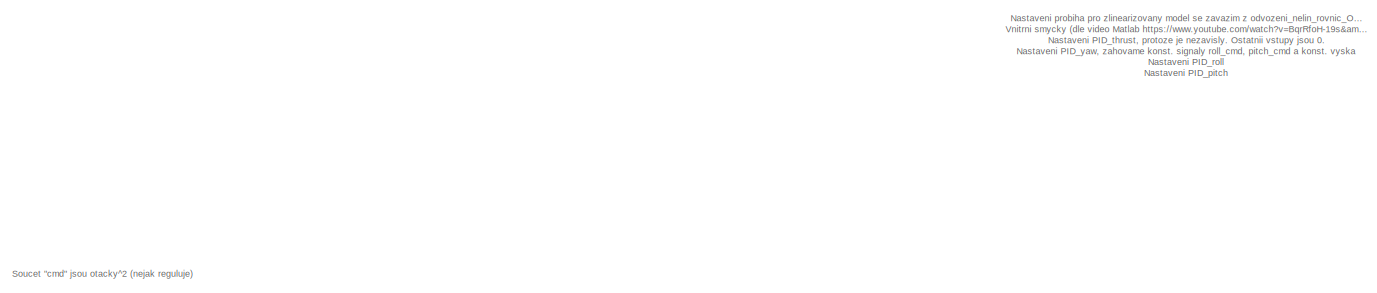
[diagram: root canvas - part 1/7, top left region]
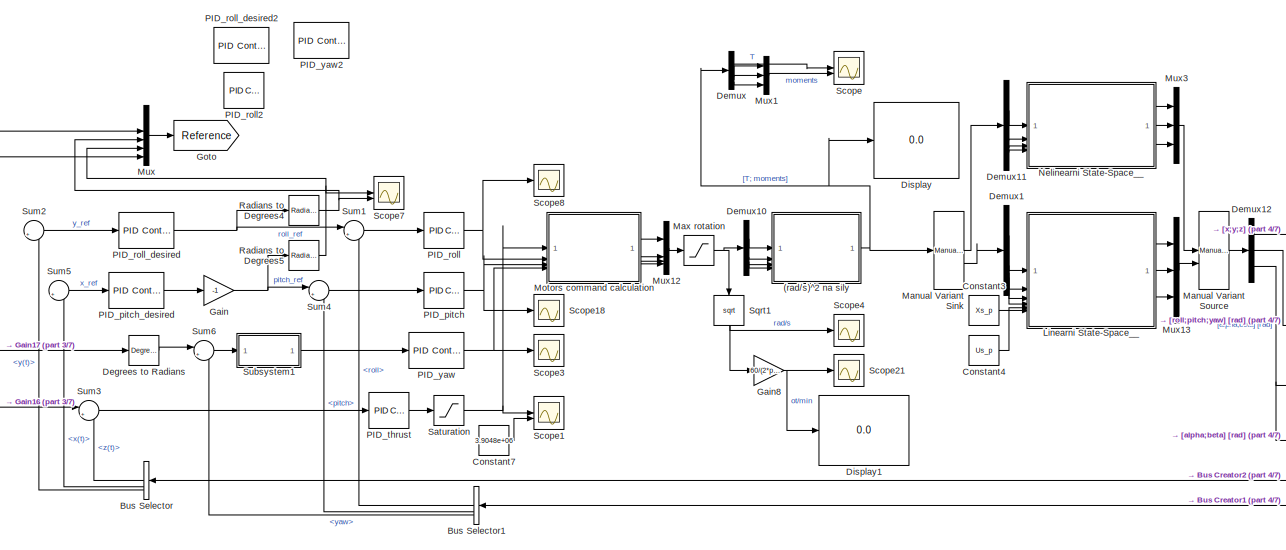
[diagram: root canvas - part 2/7, top center region]
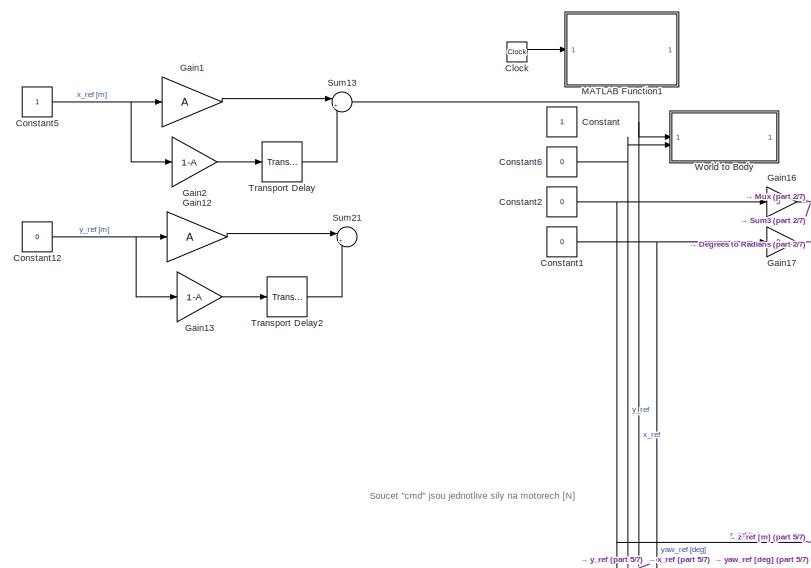
[diagram: root canvas - part 3/7, top left region]
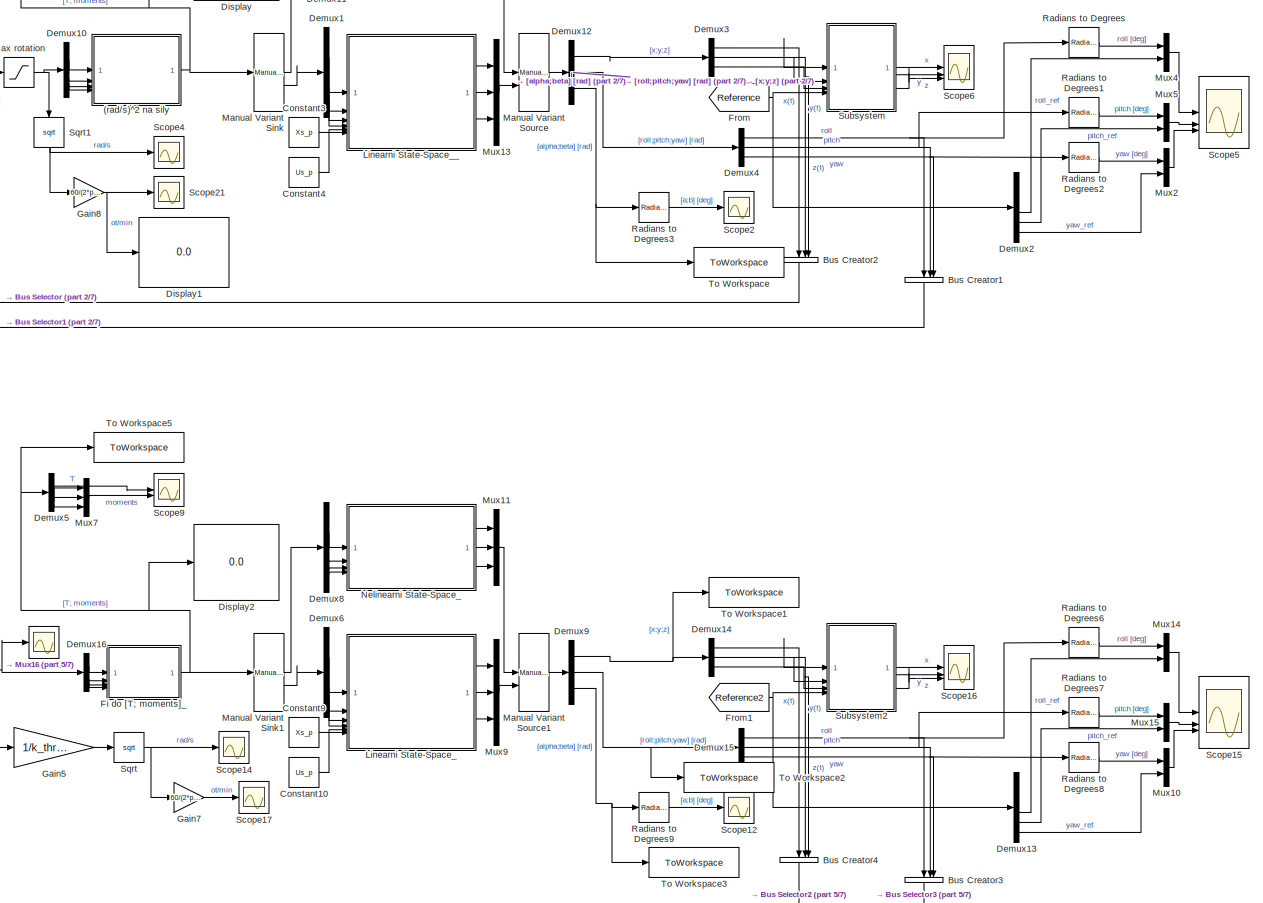
[diagram: root canvas - part 4/7, central region]
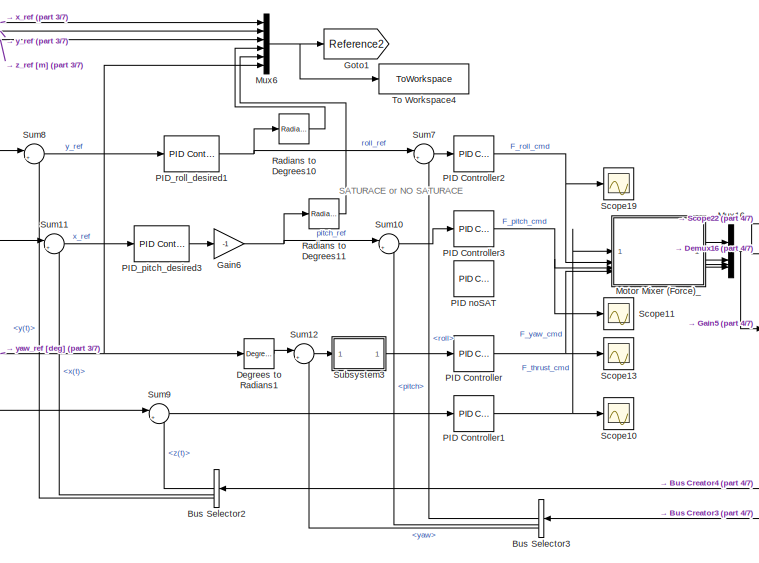
[diagram: root canvas - part 5/7, middle left region]
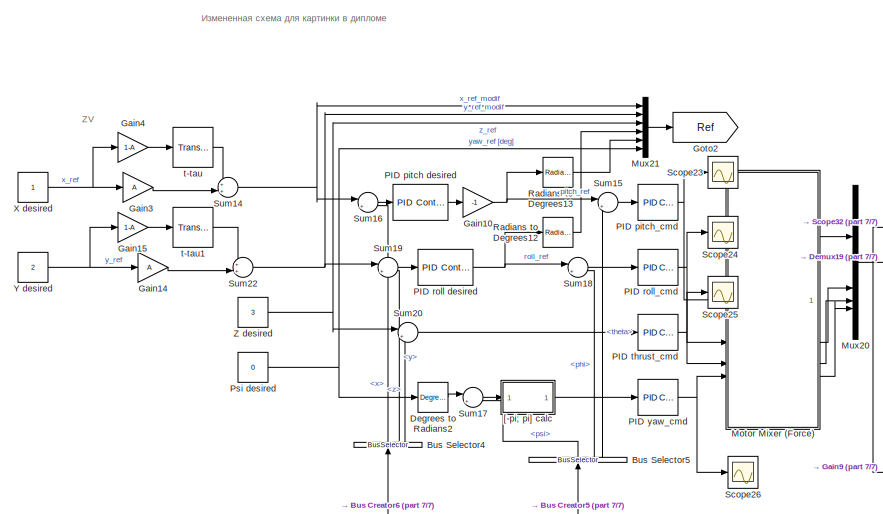
[diagram: root canvas - part 6/7, bottom center region]
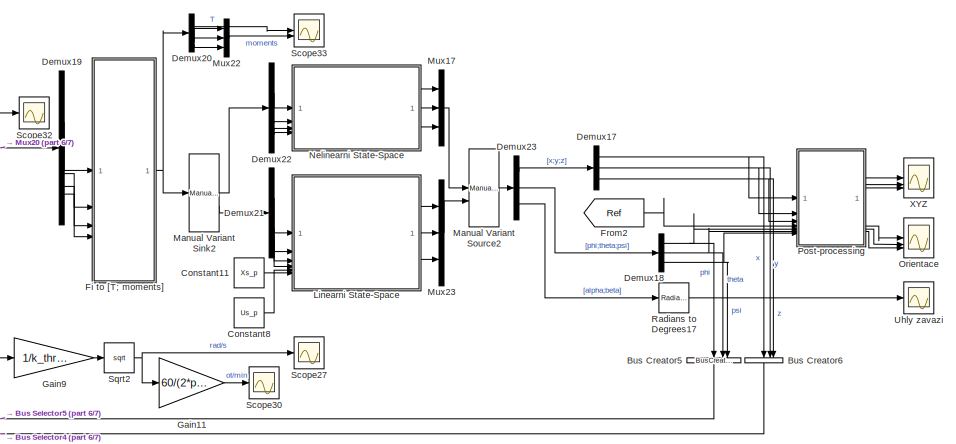
[diagram: root canvas - part 7/7, bottom right region]
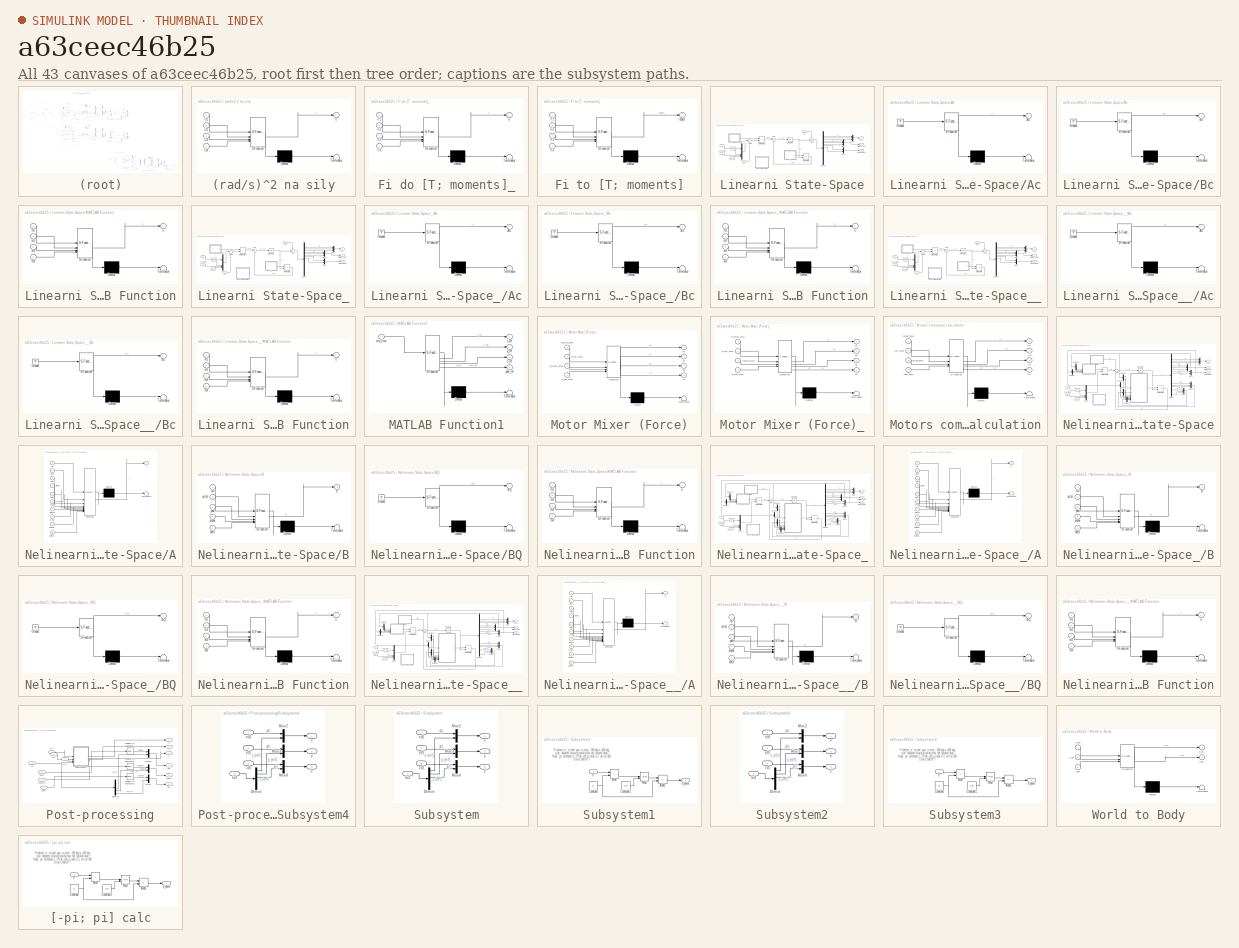
[diagram: thumbnail index - all 43 canvases of the model, root first then tree order]
MODEL slx_a63ceec46b25
KIND model
CONFIG AbsTol = auto
CONFIG EnableMultiTasking = off
CONFIG FixedStep = 0.01
CONFIG MaxStep = auto
CONFIG MinStep = auto
CONFIG RelTol = 1e-3
CONFIG SampleTimeConstraint = Unconstrained
CONFIG SolverName = ode4
CONFIG StartTime = 0.0
CONFIG StopTime = 15
BLOCK [SubSystem] (rad//s)^2 na sily
  Commented = on
  ErrorFcn = Stateflow.Translate.translate
  PermitHierarchicalResolution = ExplicitOnly
  SFBlockType = MATLAB Function
  TreatAsAtomicUnit = on
BLOCK [Demux] (rad//s)^2 na sily/ Demux 
  Outputs = 1
BLOCK [S-Function] (rad//s)^2 na sily/ SFunction 
  EnableBusSupport = on
  FunctionName = sf_sfun
  Parameters = b_moment,k_thrust,l
  PortCounts = [4 2]
  SFcnIsStateOwnerBlock = off
  SFunctionDeploymentMode = off
  Tag = Stateflow S-Function 8
BLOCK [Terminator] (rad//s)^2 na sily/ Terminator 
BLOCK [Inport] (rad//s)^2 na sily/U1
BLOCK [Inport] (rad//s)^2 na sily/U2
  Port = 2
BLOCK [Inport] (rad//s)^2 na sily/U3
  Port = 3
BLOCK [Inport] (rad//s)^2 na sily/U4
  Port = 4
BLOCK [Outport] (rad//s)^2 na sily/u
BLOCK [BusCreator] Bus Creator1
  Commented = on
  DisplayOption = bar
  InheritFromInputs = on
  Inputs = 3
  NameLocation = left
BLOCK [BusCreator] Bus Creator2
  Commented = on
  DisplayOption = bar
  InheritFromInputs = on
  Inputs = 3
  NameLocation = left
BLOCK [BusCreator] Bus Creator3
  DisplayOption = bar
  InheritFromInputs = on
  Inputs = 3
  NameLocation = left
BLOCK [BusCreator] Bus Creator4
  DisplayOption = bar
  InheritFromInputs = on
  Inputs = 3
  NameLocation = left
BLOCK [BusCreator] Bus Creator5
  Commented = on
  DisplayOption = bar
  InheritFromInputs = on
  Inputs = 3
  NameLocation = left
BLOCK [BusCreator] Bus Creator6
  Commented = on
  DisplayOption = bar
  InheritFromInputs = on
  Inputs = 3
  NameLocation = left
BLOCK [BusSelector] Bus Selector
  Commented = on
  NameLocation = top
  OutputSignals = z(t),x(t),y(t)
BLOCK [BusSelector] Bus Selector1
  Commented = on
  NameLocation = left
  OutputSignals = roll,pitch,yaw
BLOCK [BusSelector] Bus Selector2
  NameLocation = top
  OutputSignals = z(t),x(t),y(t)
BLOCK [BusSelector] Bus Selector3
  NameLocation = left
  OutputSignals = roll,pitch,yaw
BLOCK [BusSelector] Bus Selector4
  Commented = on
  NameLocation = right
  OutputSignals = x,y,z
BLOCK [BusSelector] Bus Selector5
  Commented = on
  NameLocation = top
  OutputSignals = psi,phi,theta
BLOCK [Clock] Clock
  Commented = on
BLOCK [Constant] Constant
BLOCK [Constant] Constant1
  Value = 0
BLOCK [Constant] Constant10
  Value = Us_p
BLOCK [Constant] Constant11
  Commented = on
  Value = Xs_p
BLOCK [Constant] Constant12
  Value = 0
BLOCK [Constant] Constant2
  Value = 0
BLOCK [Constant] Constant3
  Commented = on
  Value = Xs_p
BLOCK [Constant] Constant4
  Commented = on
  Value = Us_p
BLOCK [Constant] Constant5
BLOCK [Constant] Constant6
  Value = 0
BLOCK [Constant] Constant7
  Commented = on
  Value = 3.9048e+06
BLOCK [Constant] Constant8
  Commented = on
  Value = Us_p
BLOCK [Constant] Constant9
  Value = Xs_p
BLOCK [Reference] Degrees to Radians  REF=simulink_extras/Transformations/Degrees to
Radians
  Commented = on
  SourceBlock = simulink_extras/Transformations/Degrees to\nRadians
  SourceType = DegreesToRadians
BLOCK [Reference] Degrees to Radians1  REF=simulink_extras/Transformations/Degrees to
Radians
  SourceBlock = simulink_extras/Transformations/Degrees to\nRadians
  SourceType = DegreesToRadians
BLOCK [Reference] Degrees to Radians2  REF=simulink_extras/Transformations/Degrees to
Radians
  Commented = on
  SourceBlock = simulink_extras/Transformations/Degrees to\nRadians
  SourceType = DegreesToRadians
BLOCK [Demux] Demux
  Commented = on
BLOCK [Demux] Demux1
  Commented = on
BLOCK [Demux] Demux10
  Commented = on
BLOCK [Demux] Demux11
  Commented = on
BLOCK [Demux] Demux12
  Commented = on
  Outputs = 3
BLOCK [Demux] Demux13
  Outputs = 6
BLOCK [Demux] Demux14
  Outputs = 3
BLOCK [Demux] Demux15
  Outputs = 3
BLOCK [Demux] Demux16
BLOCK [Demux] Demux17
  Commented = on
  Outputs = 3
BLOCK [Demux] Demux18
  Commented = on
  Outputs = 3
BLOCK [Demux] Demux19
  Commented = on
BLOCK [Demux] Demux2
  Commented = on
  Outputs = 6
BLOCK [Demux] Demux20
  Commented = on
BLOCK [Demux] Demux21
  Commented = on
BLOCK [Demux] Demux22
  Commented = on
BLOCK [Demux] Demux23
  Commented = on
  Outputs = 3
BLOCK [Demux] Demux3
  Commented = on
  Outputs = 3
BLOCK [Demux] Demux4
  Commented = on
  Outputs = 3
BLOCK [Demux] Demux5
BLOCK [Demux] Demux6
BLOCK [Demux] Demux8
BLOCK [Demux] Demux9
  Outputs = 3
BLOCK [Display] Display
  Commented = on
  Decimation = 1
BLOCK [Display] Display1
  Commented = on
  Decimation = 1
BLOCK [Display] Display2
  Decimation = 1
BLOCK [SubSystem] Fi do [T; moments]_
  ErrorFcn = Stateflow.Translate.translate
  PermitHierarchicalResolution = ExplicitOnly
  SFBlockType = MATLAB Function
  TreatAsAtomicUnit = on
BLOCK [Demux] Fi do [T; moments]_/ Demux 
  Outputs = 1
BLOCK [S-Function] Fi do [T; moments]_/ SFunction 
  EnableBusSupport = on
  FunctionName = sf_sfun
  Parameters = b_moment,k_thrust,l
  PortCounts = [4 2]
  SFcnIsStateOwnerBlock = off
  SFunctionDeploymentMode = off
  Tag = Stateflow S-Function 11
BLOCK [Terminator] Fi do [T; moments]_/ Terminator 
BLOCK [Inport] Fi do [T; moments]_/F1
BLOCK [Inport] Fi do [T; moments]_/F2
  Port = 2
BLOCK [Inport] Fi do [T; moments]_/F3
  Port = 3
BLOCK [Inport] Fi do [T; moments]_/F4
  Port = 4
BLOCK [Outport] Fi do [T; moments]_/u
BLOCK [SubSystem] Fi to [T; moments]
  Commented = on
  ErrorFcn = Stateflow.Translate.translate
  PermitHierarchicalResolution = ExplicitOnly
  SFBlockType = MATLAB Function
  TreatAsAtomicUnit = on
BLOCK [Demux] Fi to [T; moments]/ Demux 
  Outputs = 1
BLOCK [S-Function] Fi to [T; moments]/ SFunction 
  EnableBusSupport = on
  FunctionName = sf_sfun
  Parameters = b_moment,k_thrust,l
  PortCounts = [4 2]
  SFcnIsStateOwnerBlock = off
  SFunctionDeploymentMode = off
  Tag = Stateflow S-Function 12
BLOCK [Terminator] Fi to [T; moments]/ Terminator 
BLOCK [Inport] Fi to [T; moments]/F1
BLOCK [Inport] Fi to [T; moments]/F2
  Port = 2
BLOCK [Inport] Fi to [T; moments]/F3
  Port = 3
BLOCK [Inport] Fi to [T; moments]/F4
  Port = 4
BLOCK [Outport] Fi to [T; moments]/inputs
BLOCK [From] From
  Commented = on
  GotoTag = Reference
BLOCK [From] From1
  GotoTag = Reference2
BLOCK [From] From2
  Commented = on
  GotoTag = Ref
BLOCK [Gain] Gain
  Commented = on
  Gain = -1
BLOCK [Gain] Gain1
  Gain = A
BLOCK [Gain] Gain10
  Commented = on
  Gain = -1
BLOCK [Gain] Gain11
  Commented = on
  Gain = 60/(2*pi)
BLOCK [Gain] Gain12
  Gain = A
BLOCK [Gain] Gain13
  Gain = 1-A
BLOCK [Gain] Gain14
  Commented = on
  Gain = A
BLOCK [Gain] Gain15
  Commented = on
  Gain = 1-A
BLOCK [Gain] Gain16
  Commented = on
  Gain = 0
BLOCK [Gain] Gain17
  Commented = on
  Gain = 0
BLOCK [Gain] Gain2
  Gain = 1-A
BLOCK [Gain] Gain3
  Commented = on
  Gain = A
BLOCK [Gain] Gain4
  Commented = on
  Gain = 1-A
BLOCK [Gain] Gain5
  Gain = 1/k_thrust
BLOCK [Gain] Gain6
  Gain = -1
BLOCK [Gain] Gain7
  Gain = 60/(2*pi)
BLOCK [Gain] Gain8
  Commented = on
  Gain = 60/(2*pi)
BLOCK [Gain] Gain9
  Commented = on
  Gain = 1/k_thrust
BLOCK [Goto] Goto
  Commented = on
  GotoTag = Reference
BLOCK [Goto] Goto1
  GotoTag = Reference2
BLOCK [Goto] Goto2
  Commented = on
  GotoTag = Ref
BLOCK [SubSystem] Linearni State-Space
  Commented = on
BLOCK [SubSystem] Linearni State-Space/Ac
  ErrorFcn = Stateflow.Translate.translate
  PermitHierarchicalResolution = ExplicitOnly
  SFBlockType = MATLAB Function
  TreatAsAtomicUnit = on
BLOCK [Demux] Linearni State-Space/Ac/ Demux 
  Outputs = 1
BLOCK [Ground] Linearni State-Space/Ac/ Ground 
BLOCK [S-Function] Linearni State-Space/Ac/ SFunction 
  EnableBusSupport = on
  FunctionName = sf_sfun
  Parameters = M,d,g,m
  PortCounts = [1 2]
  SFcnIsStateOwnerBlock = off
  SFunctionDeploymentMode = off
  Tag = Stateflow S-Function 17
BLOCK [Terminator] Linearni State-Space/Ac/ Terminator 
BLOCK [Outport] Linearni State-Space/Ac/Ac
BLOCK [SubSystem] Linearni State-Space/Bc
  ErrorFcn = Stateflow.Translate.translate
  PermitHierarchicalResolution = ExplicitOnly
  SFBlockType = MATLAB Function
  TreatAsAtomicUnit = on
BLOCK [Demux] Linearni State-Space/Bc/ Demux 
  Outputs = 1
BLOCK [Ground] Linearni State-Space/Bc/ Ground 
BLOCK [S-Function] Linearni State-Space/Bc/ SFunction 
  EnableBusSupport = on
  FunctionName = sf_sfun
  Parameters = Ixx,Iyy,Izz,M,m
  PortCounts = [1 2]
  SFcnIsStateOwnerBlock = off
  SFunctionDeploymentMode = off
  Tag = Stateflow S-Function 18
BLOCK [Terminator] Linearni State-Space/Bc/ Terminator 
BLOCK [Outport] Linearni State-Space/Bc/Bc
BLOCK [Demux] Linearni State-Space/Demux
  Outputs = 16
BLOCK [Integrator] Linearni State-Space/Integrator1
  InitialCondition = Xinit_ss
BLOCK [SubSystem] Linearni State-Space/MATLAB Function
  Commented = on
  ErrorFcn = Stateflow.Translate.translate
  PermitHierarchicalResolution = ExplicitOnly
  SFBlockType = MATLAB Function
  TreatAsAtomicUnit = on
BLOCK [Demux] Linearni State-Space/MATLAB Function/ Demux 
  Outputs = 1
BLOCK [S-Function] Linearni State-Space/MATLAB Function/ SFunction 
  EnableBusSupport = on
  FunctionName = sf_sfun
  Parameters = b_moment,k_thrust,l
  PortCounts = [4 2]
  SFcnIsStateOwnerBlock = off
  SFunctionDeploymentMode = off
  Tag = Stateflow S-Function 20
BLOCK [Terminator] Linearni State-Space/MATLAB Function/ Terminator 
BLOCK [Inport] Linearni State-Space/MATLAB Function/m1
BLOCK [Inport] Linearni State-Space/MATLAB Function/m2
  Port = 2
BLOCK [Inport] Linearni State-Space/MATLAB Function/m3
  Port = 3
BLOCK [Inport] Linearni State-Space/MATLAB Function/m4
  Port = 4
BLOCK [Outport] Linearni State-Space/MATLAB Function/u
BLOCK [Product] Linearni State-Space/MatrixMultiply
  Multiplication = Matrix(*)
BLOCK [Product] Linearni State-Space/MatrixMultiply1
  Multiplication = Matrix(*)
BLOCK [Mux] Linearni State-Space/Mux
  DisplayOption = bar
  Inputs = 3
BLOCK [Mux] Linearni State-Space/Mux1
  DisplayOption = bar
  Inputs = 3
BLOCK [Mux] Linearni State-Space/Mux2
  DisplayOption = bar
  Inputs = 2
BLOCK [Mux] Linearni State-Space/Mux5
  DisplayOption = bar
BLOCK [Sum] Linearni State-Space/Sum
  Inputs = |++
BLOCK [Sum] Linearni State-Space/Sum1
  Inputs = ++|
BLOCK [Sum] Linearni State-Space/Sum2
  Inputs = |+-
BLOCK [Inport] Linearni State-Space/T
BLOCK [Inport] Linearni State-Space/Tau_phi
  Port = 2
BLOCK [Inport] Linearni State-Space/Tau_psi
  Port = 4
BLOCK [Inport] Linearni State-Space/Tau_theta
  Port = 3
BLOCK [Inport] Linearni State-Space/U0
  Port = 6
BLOCK [Inport] Linearni State-Space/X0
  Port = 5
BLOCK [Outport] Linearni State-Space/[alpha;beta]
  Port = 3
BLOCK [Outport] Linearni State-Space/[roll;pitch;yaw]
  Port = 2
BLOCK [Outport] Linearni State-Space/[x;y;z]
BLOCK [SubSystem] Linearni State-Space_
BLOCK [SubSystem] Linearni State-Space_/Ac
  ErrorFcn = Stateflow.Translate.translate
  PermitHierarchicalResolution = ExplicitOnly
  SFBlockType = MATLAB Function
  TreatAsAtomicUnit = on
BLOCK [Demux] Linearni State-Space_/Ac/ Demux 
  Outputs = 1
BLOCK [Ground] Linearni State-Space_/Ac/ Ground 
BLOCK [S-Function] Linearni State-Space_/Ac/ SFunction 
  EnableBusSupport = on
  FunctionName = sf_sfun
  Parameters = M,d,g,m
  PortCounts = [1 2]
  SFcnIsStateOwnerBlock = off
  SFunctionDeploymentMode = off
  Tag = Stateflow S-Function 4
BLOCK [Terminator] Linearni State-Space_/Ac/ Terminator 
BLOCK [Outport] Linearni State-Space_/Ac/Ac
BLOCK [SubSystem] Linearni State-Space_/Bc
  ErrorFcn = Stateflow.Translate.translate
  PermitHierarchicalResolution = ExplicitOnly
  SFBlockType = MATLAB Function
  TreatAsAtomicUnit = on
BLOCK [Demux] Linearni State-Space_/Bc/ Demux 
  Outputs = 1
BLOCK [Ground] Linearni State-Space_/Bc/ Ground 
BLOCK [S-Function] Linearni State-Space_/Bc/ SFunction 
  EnableBusSupport = on
  FunctionName = sf_sfun
  Parameters = Ixx,Iyy,Izz,M,m
  PortCounts = [1 2]
  SFcnIsStateOwnerBlock = off
  SFunctionDeploymentMode = off
  Tag = Stateflow S-Function 9
BLOCK [Terminator] Linearni State-Space_/Bc/ Terminator 
BLOCK [Outport] Linearni State-Space_/Bc/Bc
BLOCK [Demux] Linearni State-Space_/Demux
  Outputs = 16
BLOCK [Integrator] Linearni State-Space_/Integrator1
  InitialCondition = Xinit_ss
BLOCK [SubSystem] Linearni State-Space_/MATLAB Function
  Commented = on
  ErrorFcn = Stateflow.Translate.translate
  PermitHierarchicalResolution = ExplicitOnly
  SFBlockType = MATLAB Function
  TreatAsAtomicUnit = on
BLOCK [Demux] Linearni State-Space_/MATLAB Function/ Demux 
  Outputs = 1
BLOCK [S-Function] Linearni State-Space_/MATLAB Function/ SFunction 
  EnableBusSupport = on
  FunctionName = sf_sfun
  Parameters = b_moment,k_thrust,l
  PortCounts = [4 2]
  SFcnIsStateOwnerBlock = off
  SFunctionDeploymentMode = off
  Tag = Stateflow S-Function 10
BLOCK [Terminator] Linearni State-Space_/MATLAB Function/ Terminator 
BLOCK [Inport] Linearni State-Space_/MATLAB Function/m1
BLOCK [Inport] Linearni State-Space_/MATLAB Function/m2
  Port = 2
BLOCK [Inport] Linearni State-Space_/MATLAB Function/m3
  Port = 3
BLOCK [Inport] Linearni State-Space_/MATLAB Function/m4
  Port = 4
BLOCK [Outport] Linearni State-Space_/MATLAB Function/u
BLOCK [Product] Linearni State-Space_/MatrixMultiply
  Multiplication = Matrix(*)
BLOCK [Product] Linearni State-Space_/MatrixMultiply1
  Multiplication = Matrix(*)
BLOCK [Mux] Linearni State-Space_/Mux
  DisplayOption = bar
  Inputs = 3
BLOCK [Mux] Linearni State-Space_/Mux1
  DisplayOption = bar
  Inputs = 3
BLOCK [Mux] Linearni State-Space_/Mux2
  DisplayOption = bar
  Inputs = 2
BLOCK [Mux] Linearni State-Space_/Mux5
  DisplayOption = bar
BLOCK [Sum] Linearni State-Space_/Sum
  Inputs = |++
BLOCK [Sum] Linearni State-Space_/Sum1
  Inputs = ++|
BLOCK [Sum] Linearni State-Space_/Sum2
  Inputs = |+-
BLOCK [Inport] Linearni State-Space_/T
BLOCK [Inport] Linearni State-Space_/Tau_phi
  Port = 2
BLOCK [Inport] Linearni State-Space_/Tau_psi
  Port = 4
BLOCK [Inport] Linearni State-Space_/Tau_theta
  Port = 3
BLOCK [Inport] Linearni State-Space_/U0
  Port = 6
BLOCK [Inport] Linearni State-Space_/X0
  Port = 5
BLOCK [Outport] Linearni State-Space_/[alpha;beta]
  Port = 3
BLOCK [Outport] Linearni State-Space_/[roll;pitch;yaw]
  Port = 2
BLOCK [Outport] Linearni State-Space_/[x;y;z]
BLOCK [SubSystem] Linearni State-Space__
  Commented = on
BLOCK [SubSystem] Linearni State-Space__/Ac
  ErrorFcn = Stateflow.Translate.translate
  PermitHierarchicalResolution = ExplicitOnly
  SFBlockType = MATLAB Function
  TreatAsAtomicUnit = on
BLOCK [Demux] Linearni State-Space__/Ac/ Demux 
  Outputs = 1
BLOCK [Ground] Linearni State-Space__/Ac/ Ground 
BLOCK [S-Function] Linearni State-Space__/Ac/ SFunction 
  EnableBusSupport = on
  FunctionName = sf_sfun
  Parameters = M,d,g,m
  PortCounts = [1 2]
  SFcnIsStateOwnerBlock = off
  SFunctionDeploymentMode = off
  Tag = Stateflow S-Function 1
BLOCK [Terminator] Linearni State-Space__/Ac/ Terminator 
BLOCK [Outport] Linearni State-Space__/Ac/Ac
BLOCK [SubSystem] Linearni State-Space__/Bc
  ErrorFcn = Stateflow.Translate.translate
  PermitHierarchicalResolution = ExplicitOnly
  SFBlockType = MATLAB Function
  TreatAsAtomicUnit = on
BLOCK [Demux] Linearni State-Space__/Bc/ Demux 
  Outputs = 1
BLOCK [Ground] Linearni State-Space__/Bc/ Ground 
BLOCK [S-Function] Linearni State-Space__/Bc/ SFunction 
  EnableBusSupport = on
  FunctionName = sf_sfun
  Parameters = Ixx,Iyy,Izz,M,m
  PortCounts = [1 2]
  SFcnIsStateOwnerBlock = off
  SFunctionDeploymentMode = off
  Tag = Stateflow S-Function 2
BLOCK [Terminator] Linearni State-Space__/Bc/ Terminator 
BLOCK [Outport] Linearni State-Space__/Bc/Bc
BLOCK [Demux] Linearni State-Space__/Demux
  Outputs = 16
BLOCK [Integrator] Linearni State-Space__/Integrator1
  InitialCondition = Xinit_ss
BLOCK [SubSystem] Linearni State-Space__/MATLAB Function
  Commented = on
  ErrorFcn = Stateflow.Translate.translate
  PermitHierarchicalResolution = ExplicitOnly
  SFBlockType = MATLAB Function
  TreatAsAtomicUnit = on
BLOCK [Demux] Linearni State-Space__/MATLAB Function/ Demux 
  Outputs = 1
BLOCK [S-Function] Linearni State-Space__/MATLAB Function/ SFunction 
  EnableBusSupport = on
  FunctionName = sf_sfun
  Parameters = b_moment,k_thrust,l
  PortCounts = [4 2]
  SFcnIsStateOwnerBlock = off
  SFunctionDeploymentMode = off
  Tag = Stateflow S-Function 3
BLOCK [Terminator] Linearni State-Space__/MATLAB Function/ Terminator 
BLOCK [Inport] Linearni State-Space__/MATLAB Function/m1
BLOCK [Inport] Linearni State-Space__/MATLAB Function/m2
  Port = 2
BLOCK [Inport] Linearni State-Space__/MATLAB Function/m3
  Port = 3
BLOCK [Inport] Linearni State-Space__/MATLAB Function/m4
  Port = 4
BLOCK [Outport] Linearni State-Space__/MATLAB Function/u
BLOCK [Product] Linearni State-Space__/MatrixMultiply
  Multiplication = Matrix(*)
BLOCK [Product] Linearni State-Space__/MatrixMultiply1
  Multiplication = Matrix(*)
BLOCK [Mux] Linearni State-Space__/Mux
  DisplayOption = bar
  Inputs = 3
BLOCK [Mux] Linearni State-Space__/Mux1
  DisplayOption = bar
  Inputs = 3
BLOCK [Mux] Linearni State-Space__/Mux2
  DisplayOption = bar
  Inputs = 2
BLOCK [Mux] Linearni State-Space__/Mux5
  DisplayOption = bar
BLOCK [Sum] Linearni State-Space__/Sum
  Inputs = |++
BLOCK [Sum] Linearni State-Space__/Sum1
  Inputs = ++|
BLOCK [Sum] Linearni State-Space__/Sum2
  Inputs = |+-
BLOCK [Inport] Linearni State-Space__/T
BLOCK [Inport] Linearni State-Space__/Tau_phi
  Port = 2
BLOCK [Inport] Linearni State-Space__/Tau_psi
  Port = 4
BLOCK [Inport] Linearni State-Space__/Tau_theta
  Port = 3
BLOCK [Inport] Linearni State-Space__/U0
  Port = 6
BLOCK [Inport] Linearni State-Space__/X0
  Port = 5
BLOCK [Outport] Linearni State-Space__/[alpha;beta]
  Port = 3
BLOCK [Outport] Linearni State-Space__/[roll;pitch;yaw]
  Port = 2
BLOCK [Outport] Linearni State-Space__/[x;y;z]
BLOCK [SubSystem] MATLAB Function1
  Commented = on
  ErrorFcn = Stateflow.Translate.translate
  PermitHierarchicalResolution = ExplicitOnly
  SFBlockType = MATLAB Function
  TreatAsAtomicUnit = on
BLOCK [Demux] MATLAB Function1/ Demux 
  Outputs = 1
BLOCK [S-Function] MATLAB Function1/ SFunction 
  EnableBusSupport = on
  FunctionName = sf_sfun
  PortCounts = [1 5]
  SFcnIsStateOwnerBlock = off
  SFunctionDeploymentMode = off
  Tag = Stateflow S-Function 5
BLOCK [Terminator] MATLAB Function1/ Terminator 
BLOCK [Inport] MATLAB Function1/sim_time
BLOCK [Outport] MATLAB Function1/x_ref
BLOCK [Outport] MATLAB Function1/y_ref
  Port = 2
BLOCK [Outport] MATLAB Function1/yaw_ref
  Port = 4
BLOCK [Outport] MATLAB Function1/z_ref
  Port = 3
BLOCK [Reference] Manual Variant Sink  REF=simulink/Signal
Routing/Manual
Variant Sink
  Commented = on
  SourceBlock = simulink/Signal\nRouting/Manual\nVariant Sink
  SourceType = ManualVariantSink
BLOCK [Reference] Manual Variant Sink1  REF=simulink/Signal
Routing/Manual
Variant Sink
  SourceBlock = simulink/Signal\nRouting/Manual\nVariant Sink
  SourceType = ManualVariantSink
BLOCK [Reference] Manual Variant Sink2  REF=simulink/Signal
Routing/Manual
Variant Sink
  Commented = on
  SourceBlock = simulink/Signal\nRouting/Manual\nVariant Sink
  SourceType = ManualVariantSink
BLOCK [Reference] Manual Variant Source  REF=simulink/Signal
Routing/Manual
Variant Source
  Commented = on
  SourceBlock = simulink/Signal\nRouting/Manual\nVariant Source
  SourceType = ManualVariantSource
BLOCK [Reference] Manual Variant Source1  REF=simulink/Signal
Routing/Manual
Variant Source
  SourceBlock = simulink/Signal\nRouting/Manual\nVariant Source
  SourceType = ManualVariantSource
BLOCK [Reference] Manual Variant Source2  REF=simulink/Signal
Routing/Manual
Variant Source
  Commented = on
  SourceBlock = simulink/Signal\nRouting/Manual\nVariant Source
  SourceType = ManualVariantSource
BLOCK [Saturate] Max rotation
  Commented = on
  LinearizeAsGain = off
  LowerLimit = 0
  UpperLimit = 3.9048e+06
BLOCK [SubSystem] Motor Mixer (Force)
  Commented = on
  ErrorFcn = Stateflow.Translate.translate
  PermitHierarchicalResolution = ExplicitOnly
  SFBlockType = MATLAB Function
  TreatAsAtomicUnit = on
BLOCK [Demux] Motor Mixer (Force)/ Demux 
  Outputs = 1
BLOCK [S-Function] Motor Mixer (Force)/ SFunction 
  EnableBusSupport = on
  FunctionName = sf_sfun
  PortCounts = [4 5]
  SFcnIsStateOwnerBlock = off
  SFunctionDeploymentMode = off
  Tag = Stateflow S-Function 25
BLOCK [Terminator] Motor Mixer (Force)/ Terminator 
BLOCK [Outport] Motor Mixer (Force)/F1
BLOCK [Outport] Motor Mixer (Force)/F2
  Port = 2
BLOCK [Outport] Motor Mixer (Force)/F3
  Port = 3
BLOCK [Outport] Motor Mixer (Force)/F4
  Port = 4
BLOCK [Inport] Motor Mixer (Force)/F_pitch_cmd
BLOCK [Inport] Motor Mixer (Force)/F_roll_cmd
  Port = 2
BLOCK [Inport] Motor Mixer (Force)/F_thrust_cmd
  Port = 3
BLOCK [Inport] Motor Mixer (Force)/F_yaw_cmd
  Port = 4
BLOCK [SubSystem] Motor Mixer (Force)_
  ErrorFcn = Stateflow.Translate.translate
  PermitHierarchicalResolution = ExplicitOnly
  SFBlockType = MATLAB Function
  TreatAsAtomicUnit = on
BLOCK [Demux] Motor Mixer (Force)_/ Demux 
  Outputs = 1
BLOCK [S-Function] Motor Mixer (Force)_/ SFunction 
  EnableBusSupport = on
  FunctionName = sf_sfun
  PortCounts = [4 5]
  SFcnIsStateOwnerBlock = off
  SFunctionDeploymentMode = off
  Tag = Stateflow S-Function 19
BLOCK [Terminator] Motor Mixer (Force)_/ Terminator 
BLOCK [Outport] Motor Mixer (Force)_/F1
BLOCK [Outport] Motor Mixer (Force)_/F2
  Port = 2
BLOCK [Outport] Motor Mixer (Force)_/F3
  Port = 3
BLOCK [Outport] Motor Mixer (Force)_/F4
  Port = 4
BLOCK [Inport] Motor Mixer (Force)_/F_pitch_cmd
  Port = 3
BLOCK [Inport] Motor Mixer (Force)_/F_roll_cmd
  Port = 2
BLOCK [Inport] Motor Mixer (Force)_/F_thrust_cmd
BLOCK [Inport] Motor Mixer (Force)_/F_yaw_cmd
  Port = 4
BLOCK [SubSystem] Motors command calculation
  Commented = on
  ErrorFcn = Stateflow.Translate.translate
  PermitHierarchicalResolution = ExplicitOnly
  SFBlockType = MATLAB Function
  TreatAsAtomicUnit = on
BLOCK [Demux] Motors command calculation/ Demux 
  Outputs = 1
BLOCK [S-Function] Motors command calculation/ SFunction 
  EnableBusSupport = on
  FunctionName = sf_sfun
  PortCounts = [4 5]
  SFcnIsStateOwnerBlock = off
  SFunctionDeploymentMode = off
  Tag = Stateflow S-Function 6
BLOCK [Terminator] Motors command calculation/ Terminator 
BLOCK [Outport] Motors command calculation/U1
BLOCK [Outport] Motors command calculation/U2
  Port = 2
BLOCK [Outport] Motors command calculation/U3
  Port = 3
BLOCK [Outport] Motors command calculation/U4
  Port = 4
BLOCK [Inport] Motors command calculation/pitch_cmd
  Port = 3
BLOCK [Inport] Motors command calculation/roll_cmd
  Port = 2
BLOCK [Inport] Motors command calculation/thrust_cmd
BLOCK [Inport] Motors command calculation/yaw_cmd
  Port = 4
BLOCK [Mux] Mux
  Commented = on
  DisplayOption = bar
  Inputs = 6
BLOCK [Mux] Mux1
  Commented = on
  DisplayOption = bar
  Inputs = 3
BLOCK [Mux] Mux10
  DisplayOption = bar
  Inputs = 2
BLOCK [Mux] Mux11
  DisplayOption = bar
  Inputs = 3
BLOCK [Mux] Mux12
  Commented = on
  DisplayOption = bar
BLOCK [Mux] Mux13
  Commented = on
  DisplayOption = bar
  Inputs = 3
BLOCK [Mux] Mux14
  DisplayOption = bar
  Inputs = 2
BLOCK [Mux] Mux15
  DisplayOption = bar
  Inputs = 2
BLOCK [Mux] Mux16
  DisplayOption = bar
BLOCK [Mux] Mux17
  Commented = on
  DisplayOption = bar
  Inputs = 3
BLOCK [Mux] Mux2
  Commented = on
  DisplayOption = bar
  Inputs = 2
BLOCK [Mux] Mux20
  Commented = on
  DisplayOption = bar
BLOCK [Mux] Mux21
  Commented = on
  DisplayOption = bar
  Inputs = 6
BLOCK [Mux] Mux22
  Commented = on
  DisplayOption = bar
  Inputs = 3
BLOCK [Mux] Mux23
  Commented = on
  DisplayOption = bar
  Inputs = 3
BLOCK [Mux] Mux3
  Commented = on
  DisplayOption = bar
  Inputs = 3
BLOCK [Mux] Mux4
  Commented = on
  DisplayOption = bar
  Inputs = 2
BLOCK [Mux] Mux5
  Commented = on
  DisplayOption = bar
  Inputs = 2
BLOCK [Mux] Mux6
  DisplayOption = bar
  Inputs = 6
BLOCK [Mux] Mux7
  DisplayOption = bar
  Inputs = 3
BLOCK [Mux] Mux9
  DisplayOption = bar
  Inputs = 3
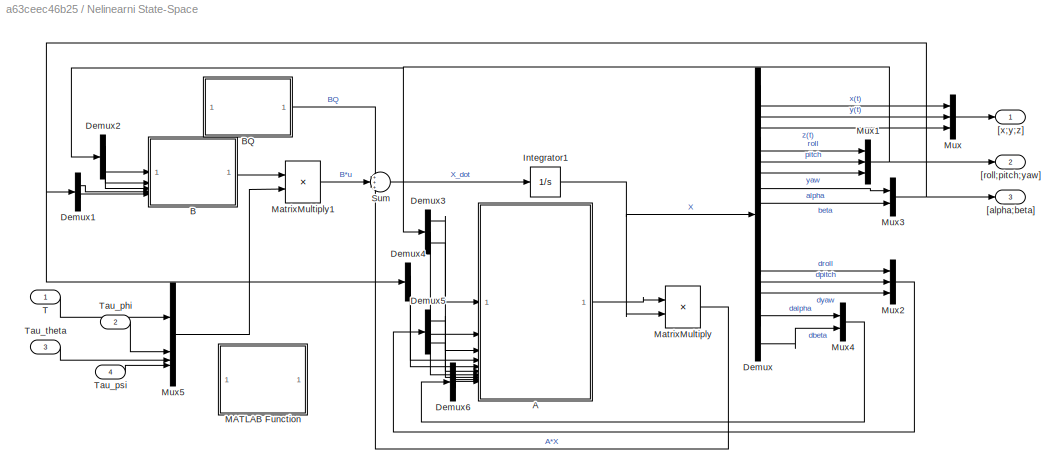
BLOCK [SubSystem] Nelinearni State-Space
  Commented = on
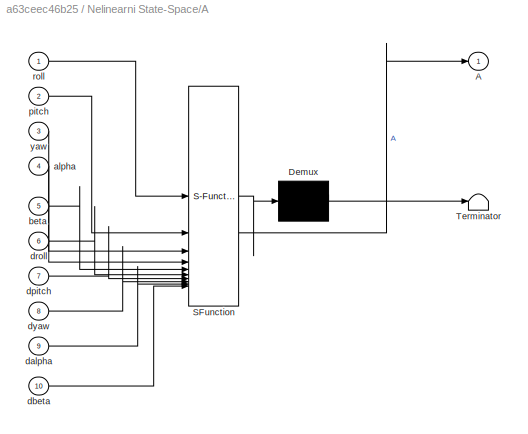
BLOCK [SubSystem] Nelinearni State-Space/A
  ErrorFcn = Stateflow.Translate.translate
  PermitHierarchicalResolution = ExplicitOnly
  SFBlockType = MATLAB Function
  TreatAsAtomicUnit = on
BLOCK [Demux] Nelinearni State-Space/A/ Demux 
  Outputs = 1
BLOCK [S-Function] Nelinearni State-Space/A/ SFunction 
  EnableBusSupport = on
  FunctionName = sf_sfun
  Parameters = Ip,Ixx,Iyy,Izz,M,d,m
  PortCounts = [10 2]
  SFcnIsStateOwnerBlock = off
  SFunctionDeploymentMode = off
  Tag = Stateflow S-Function 26
BLOCK [Terminator] Nelinearni State-Space/A/ Terminator 
BLOCK [Outport] Nelinearni State-Space/A/A
BLOCK [Inport] Nelinearni State-Space/A/alpha
  Port = 4
BLOCK [Inport] Nelinearni State-Space/A/beta
  Port = 5
BLOCK [Inport] Nelinearni State-Space/A/dalpha
  Port = 9
BLOCK [Inport] Nelinearni State-Space/A/dbeta
  Port = 10
BLOCK [Inport] Nelinearni State-Space/A/dpitch
  Port = 7
BLOCK [Inport] Nelinearni State-Space/A/droll
  Port = 6
BLOCK [Inport] Nelinearni State-Space/A/dyaw
  Port = 8
BLOCK [Inport] Nelinearni State-Space/A/pitch
  Port = 2
BLOCK [Inport] Nelinearni State-Space/A/roll
BLOCK [Inport] Nelinearni State-Space/A/yaw
  Port = 3
BLOCK [SubSystem] Nelinearni State-Space/B
  ErrorFcn = Stateflow.Translate.translate
  PermitHierarchicalResolution = ExplicitOnly
  SFBlockType = MATLAB Function
  TreatAsAtomicUnit = on
BLOCK [Demux] Nelinearni State-Space/B/ Demux 
  Outputs = 1
BLOCK [S-Function] Nelinearni State-Space/B/ SFunction 
  EnableBusSupport = on
  FunctionName = sf_sfun
  Parameters = Ip,Ixx,Iyy,Izz,M,d,m
  PortCounts = [5 2]
  SFcnIsStateOwnerBlock = off
  SFunctionDeploymentMode = off
  Tag = Stateflow S-Function 27
BLOCK [Terminator] Nelinearni State-Space/B/ Terminator 
BLOCK [Outport] Nelinearni State-Space/B/B
BLOCK [Inport] Nelinearni State-Space/B/alpha
  Port = 4
BLOCK [Inport] Nelinearni State-Space/B/beta
  Port = 5
BLOCK [Inport] Nelinearni State-Space/B/pitch
  Port = 2
BLOCK [Inport] Nelinearni State-Space/B/roll
BLOCK [Inport] Nelinearni State-Space/B/yaw
  Port = 3
BLOCK [SubSystem] Nelinearni State-Space/BQ
  ErrorFcn = Stateflow.Translate.translate
  PermitHierarchicalResolution = ExplicitOnly
  SFBlockType = MATLAB Function
  TreatAsAtomicUnit = on
BLOCK [Demux] Nelinearni State-Space/BQ/ Demux 
  Outputs = 1
BLOCK [Ground] Nelinearni State-Space/BQ/ Ground 
BLOCK [S-Function] Nelinearni State-Space/BQ/ SFunction 
  EnableBusSupport = on
  FunctionName = sf_sfun
  Parameters = g
  PortCounts = [1 2]
  SFcnIsStateOwnerBlock = off
  SFunctionDeploymentMode = off
  Tag = Stateflow S-Function 28
BLOCK [Terminator] Nelinearni State-Space/BQ/ Terminator 
BLOCK [Outport] Nelinearni State-Space/BQ/BQ
BLOCK [Demux] Nelinearni State-Space/Demux
  Outputs = 16
BLOCK [Demux] Nelinearni State-Space/Demux1
  Outputs = 2
BLOCK [Demux] Nelinearni State-Space/Demux2
  Outputs = 3
BLOCK [Demux] Nelinearni State-Space/Demux3
  Outputs = 3
BLOCK [Demux] Nelinearni State-Space/Demux4
  Outputs = 2
BLOCK [Demux] Nelinearni State-Space/Demux5
  Outputs = 3
BLOCK [Demux] Nelinearni State-Space/Demux6
  Outputs = 2
BLOCK [Integrator] Nelinearni State-Space/Integrator1
  InitialCondition = Xinit_ss
BLOCK [SubSystem] Nelinearni State-Space/MATLAB Function
  Commented = on
  ErrorFcn = Stateflow.Translate.translate
  PermitHierarchicalResolution = ExplicitOnly
  SFBlockType = MATLAB Function
  TreatAsAtomicUnit = on
BLOCK [Demux] Nelinearni State-Space/MATLAB Function/ Demux 
  Outputs = 1
BLOCK [S-Function] Nelinearni State-Space/MATLAB Function/ SFunction 
  EnableBusSupport = on
  FunctionName = sf_sfun
  Parameters = L,b_moment,k_thrust
  PortCounts = [4 2]
  SFcnIsStateOwnerBlock = off
  SFunctionDeploymentMode = off
  Tag = Stateflow S-Function 29
BLOCK [Terminator] Nelinearni State-Space/MATLAB Function/ Terminator 
BLOCK [Inport] Nelinearni State-Space/MATLAB Function/m1
BLOCK [Inport] Nelinearni State-Space/MATLAB Function/m2
  Port = 2
BLOCK [Inport] Nelinearni State-Space/MATLAB Function/m3
  Port = 3
BLOCK [Inport] Nelinearni State-Space/MATLAB Function/m4
  Port = 4
BLOCK [Outport] Nelinearni State-Space/MATLAB Function/u
BLOCK [Product] Nelinearni State-Space/MatrixMultiply
  Multiplication = Matrix(*)
BLOCK [Product] Nelinearni State-Space/MatrixMultiply1
  Multiplication = Matrix(*)
BLOCK [Mux] Nelinearni State-Space/Mux
  DisplayOption = bar
  Inputs = 3
BLOCK [Mux] Nelinearni State-Space/Mux1
  DisplayOption = bar
  Inputs = 3
BLOCK [Mux] Nelinearni State-Space/Mux2
  DisplayOption = bar
  Inputs = 3
BLOCK [Mux] Nelinearni State-Space/Mux3
  DisplayOption = bar
  Inputs = 2
BLOCK [Mux] Nelinearni State-Space/Mux4
  DisplayOption = bar
  Inputs = 2
BLOCK [Mux] Nelinearni State-Space/Mux5
  DisplayOption = bar
BLOCK [Sum] Nelinearni State-Space/Sum
  Inputs = +++
BLOCK [Inport] Nelinearni State-Space/T
BLOCK [Inport] Nelinearni State-Space/Tau_phi
  Port = 2
BLOCK [Inport] Nelinearni State-Space/Tau_psi
  Port = 4
BLOCK [Inport] Nelinearni State-Space/Tau_theta
  Port = 3
BLOCK [Outport] Nelinearni State-Space/[alpha;beta]
  Port = 3
BLOCK [Outport] Nelinearni State-Space/[roll;pitch;yaw]
  Port = 2
BLOCK [Outport] Nelinearni State-Space/[x;y;z]
BLOCK [SubSystem] Nelinearni State-Space_
BLOCK [SubSystem] Nelinearni State-Space_/A
  ErrorFcn = Stateflow.Translate.translate
  PermitHierarchicalResolution = ExplicitOnly
  SFBlockType = MATLAB Function
  TreatAsAtomicUnit = on
BLOCK [Demux] Nelinearni State-Space_/A/ Demux 
  Outputs = 1
BLOCK [S-Function] Nelinearni State-Space_/A/ SFunction 
  EnableBusSupport = on
  FunctionName = sf_sfun
  Parameters = Ip,Ixx,Iyy,Izz,M,d,m
  PortCounts = [10 2]
  SFcnIsStateOwnerBlock = off
  SFunctionDeploymentMode = off
  Tag = Stateflow S-Function 13
BLOCK [Terminator] Nelinearni State-Space_/A/ Terminator 
BLOCK [Outport] Nelinearni State-Space_/A/A
BLOCK [Inport] Nelinearni State-Space_/A/alpha
  Port = 4
BLOCK [Inport] Nelinearni State-Space_/A/beta
  Port = 5
BLOCK [Inport] Nelinearni State-Space_/A/dalpha
  Port = 9
BLOCK [Inport] Nelinearni State-Space_/A/dbeta
  Port = 10
BLOCK [Inport] Nelinearni State-Space_/A/dpitch
  Port = 7
BLOCK [Inport] Nelinearni State-Space_/A/droll
  Port = 6
BLOCK [Inport] Nelinearni State-Space_/A/dyaw
  Port = 8
BLOCK [Inport] Nelinearni State-Space_/A/pitch
  Port = 2
BLOCK [Inport] Nelinearni State-Space_/A/roll
BLOCK [Inport] Nelinearni State-Space_/A/yaw
  Port = 3
BLOCK [SubSystem] Nelinearni State-Space_/B
  ErrorFcn = Stateflow.Translate.translate
  PermitHierarchicalResolution = ExplicitOnly
  SFBlockType = MATLAB Function
  TreatAsAtomicUnit = on
BLOCK [Demux] Nelinearni State-Space_/B/ Demux 
  Outputs = 1
BLOCK [S-Function] Nelinearni State-Space_/B/ SFunction 
  EnableBusSupport = on
  FunctionName = sf_sfun
  Parameters = Ip,Ixx,Iyy,Izz,M,d,m
  PortCounts = [5 2]
  SFcnIsStateOwnerBlock = off
  SFunctionDeploymentMode = off
  Tag = Stateflow S-Function 14
BLOCK [Terminator] Nelinearni State-Space_/B/ Terminator 
BLOCK [Outport] Nelinearni State-Space_/B/B
BLOCK [Inport] Nelinearni State-Space_/B/alpha
  Port = 4
BLOCK [Inport] Nelinearni State-Space_/B/beta
  Port = 5
BLOCK [Inport] Nelinearni State-Space_/B/pitch
  Port = 2
BLOCK [Inport] Nelinearni State-Space_/B/roll
BLOCK [Inport] Nelinearni State-Space_/B/yaw
  Port = 3
BLOCK [SubSystem] Nelinearni State-Space_/BQ
  ErrorFcn = Stateflow.Translate.translate
  PermitHierarchicalResolution = ExplicitOnly
  SFBlockType = MATLAB Function
  TreatAsAtomicUnit = on
BLOCK [Demux] Nelinearni State-Space_/BQ/ Demux 
  Outputs = 1
BLOCK [Ground] Nelinearni State-Space_/BQ/ Ground 
BLOCK [S-Function] Nelinearni State-Space_/BQ/ SFunction 
  EnableBusSupport = on
  FunctionName = sf_sfun
  Parameters = g
  PortCounts = [1 2]
  SFcnIsStateOwnerBlock = off
  SFunctionDeploymentMode = off
  Tag = Stateflow S-Function 15
BLOCK [Terminator] Nelinearni State-Space_/BQ/ Terminator 
BLOCK [Outport] Nelinearni State-Space_/BQ/BQ
BLOCK [Demux] Nelinearni State-Space_/Demux
  Outputs = 16
BLOCK [Demux] Nelinearni State-Space_/Demux1
  Outputs = 2
BLOCK [Demux] Nelinearni State-Space_/Demux2
  Outputs = 3
BLOCK [Demux] Nelinearni State-Space_/Demux3
  Outputs = 3
BLOCK [Demux] Nelinearni State-Space_/Demux4
  Outputs = 2
BLOCK [Demux] Nelinearni State-Space_/Demux5
  Outputs = 3
BLOCK [Demux] Nelinearni State-Space_/Demux6
  Outputs = 2
BLOCK [Integrator] Nelinearni State-Space_/Integrator1
  InitialCondition = Xinit_ss
BLOCK [SubSystem] Nelinearni State-Space_/MATLAB Function
  Commented = on
  ErrorFcn = Stateflow.Translate.translate
  PermitHierarchicalResolution = ExplicitOnly
  SFBlockType = MATLAB Function
  TreatAsAtomicUnit = on
BLOCK [Demux] Nelinearni State-Space_/MATLAB Function/ Demux 
  Outputs = 1
BLOCK [S-Function] Nelinearni State-Space_/MATLAB Function/ SFunction 
  EnableBusSupport = on
  FunctionName = sf_sfun
  Parameters = L,b_moment,k_thrust
  PortCounts = [4 2]
  SFcnIsStateOwnerBlock = off
  SFunctionDeploymentMode = off
  Tag = Stateflow S-Function 16
BLOCK [Terminator] Nelinearni State-Space_/MATLAB Function/ Terminator 
BLOCK [Inport] Nelinearni State-Space_/MATLAB Function/m1
BLOCK [Inport] Nelinearni State-Space_/MATLAB Function/m2
  Port = 2
BLOCK [Inport] Nelinearni State-Space_/MATLAB Function/m3
  Port = 3
BLOCK [Inport] Nelinearni State-Space_/MATLAB Function/m4
  Port = 4
BLOCK [Outport] Nelinearni State-Space_/MATLAB Function/u
BLOCK [Product] Nelinearni State-Space_/MatrixMultiply
  Multiplication = Matrix(*)
BLOCK [Product] Nelinearni State-Space_/MatrixMultiply1
  Multiplication = Matrix(*)
BLOCK [Mux] Nelinearni State-Space_/Mux
  DisplayOption = bar
  Inputs = 3
BLOCK [Mux] Nelinearni State-Space_/Mux1
  DisplayOption = bar
  Inputs = 3
BLOCK [Mux] Nelinearni State-Space_/Mux2
  DisplayOption = bar
  Inputs = 3
BLOCK [Mux] Nelinearni State-Space_/Mux3
  DisplayOption = bar
  Inputs = 2
BLOCK [Mux] Nelinearni State-Space_/Mux4
  DisplayOption = bar
  Inputs = 2
BLOCK [Mux] Nelinearni State-Space_/Mux5
  DisplayOption = bar
BLOCK [Sum] Nelinearni State-Space_/Sum
  Inputs = +++
BLOCK [Inport] Nelinearni State-Space_/T
BLOCK [Inport] Nelinearni State-Space_/Tau_phi
  Port = 2
BLOCK [Inport] Nelinearni State-Space_/Tau_psi
  Port = 4
BLOCK [Inport] Nelinearni State-Space_/Tau_theta
  Port = 3
BLOCK [Outport] Nelinearni State-Space_/[alpha;beta]
  Port = 3
BLOCK [Outport] Nelinearni State-Space_/[roll;pitch;yaw]
  Port = 2
BLOCK [Outport] Nelinearni State-Space_/[x;y;z]
BLOCK [SubSystem] Nelinearni State-Space__
  Commented = on
BLOCK [SubSystem] Nelinearni State-Space__/A
  ErrorFcn = Stateflow.Translate.translate
  PermitHierarchicalResolution = ExplicitOnly
  SFBlockType = MATLAB Function
  TreatAsAtomicUnit = on
BLOCK [Demux] Nelinearni State-Space__/A/ Demux 
  Outputs = 1
BLOCK [S-Function] Nelinearni State-Space__/A/ SFunction 
  EnableBusSupport = on
  FunctionName = sf_sfun
  Parameters = Ip,Ixx,Iyy,Izz,M,d,m
  PortCounts = [10 2]
  SFcnIsStateOwnerBlock = off
  SFunctionDeploymentMode = off
  Tag = Stateflow S-Function 21
BLOCK [Terminator] Nelinearni State-Space__/A/ Terminator 
BLOCK [Outport] Nelinearni State-Space__/A/A
BLOCK [Inport] Nelinearni State-Space__/A/alpha
  Port = 4
BLOCK [Inport] Nelinearni State-Space__/A/beta
  Port = 5
BLOCK [Inport] Nelinearni State-Space__/A/dalpha
  Port = 9
BLOCK [Inport] Nelinearni State-Space__/A/dbeta
  Port = 10
BLOCK [Inport] Nelinearni State-Space__/A/dpitch
  Port = 7
BLOCK [Inport] Nelinearni State-Space__/A/droll
  Port = 6
BLOCK [Inport] Nelinearni State-Space__/A/dyaw
  Port = 8
BLOCK [Inport] Nelinearni State-Space__/A/pitch
  Port = 2
BLOCK [Inport] Nelinearni State-Space__/A/roll
BLOCK [Inport] Nelinearni State-Space__/A/yaw
  Port = 3
BLOCK [SubSystem] Nelinearni State-Space__/B
  ErrorFcn = Stateflow.Translate.translate
  PermitHierarchicalResolution = ExplicitOnly
  SFBlockType = MATLAB Function
  TreatAsAtomicUnit = on
BLOCK [Demux] Nelinearni State-Space__/B/ Demux 
  Outputs = 1
BLOCK [S-Function] Nelinearni State-Space__/B/ SFunction 
  EnableBusSupport = on
  FunctionName = sf_sfun
  Parameters = Ip,Ixx,Iyy,Izz,M,d,m
  PortCounts = [5 2]
  SFcnIsStateOwnerBlock = off
  SFunctionDeploymentMode = off
  Tag = Stateflow S-Function 22
BLOCK [Terminator] Nelinearni State-Space__/B/ Terminator 
BLOCK [Outport] Nelinearni State-Space__/B/B
BLOCK [Inport] Nelinearni State-Space__/B/alpha
  Port = 4
BLOCK [Inport] Nelinearni State-Space__/B/beta
  Port = 5
BLOCK [Inport] Nelinearni State-Space__/B/pitch
  Port = 2
BLOCK [Inport] Nelinearni State-Space__/B/roll
BLOCK [Inport] Nelinearni State-Space__/B/yaw
  Port = 3
BLOCK [SubSystem] Nelinearni State-Space__/BQ
  ErrorFcn = Stateflow.Translate.translate
  PermitHierarchicalResolution = ExplicitOnly
  SFBlockType = MATLAB Function
  TreatAsAtomicUnit = on
BLOCK [Demux] Nelinearni State-Space__/BQ/ Demux 
  Outputs = 1
BLOCK [Ground] Nelinearni State-Space__/BQ/ Ground 
BLOCK [S-Function] Nelinearni State-Space__/BQ/ SFunction 
  EnableBusSupport = on
  FunctionName = sf_sfun
  Parameters = g
  PortCounts = [1 2]
  SFcnIsStateOwnerBlock = off
  SFunctionDeploymentMode = off
  Tag = Stateflow S-Function 23
BLOCK [Terminator] Nelinearni State-Space__/BQ/ Terminator 
BLOCK [Outport] Nelinearni State-Space__/BQ/BQ
BLOCK [Demux] Nelinearni State-Space__/Demux
  Outputs = 16
BLOCK [Demux] Nelinearni State-Space__/Demux1
  Outputs = 2
BLOCK [Demux] Nelinearni State-Space__/Demux2
  Outputs = 3
BLOCK [Demux] Nelinearni State-Space__/Demux3
  Outputs = 3
BLOCK [Demux] Nelinearni State-Space__/Demux4
  Outputs = 2
BLOCK [Demux] Nelinearni State-Space__/Demux5
  Outputs = 3
BLOCK [Demux] Nelinearni State-Space__/Demux6
  Outputs = 2
BLOCK [Integrator] Nelinearni State-Space__/Integrator1
  InitialCondition = Xinit_ss
BLOCK [SubSystem] Nelinearni State-Space__/MATLAB Function
  Commented = on
  ErrorFcn = Stateflow.Translate.translate
  PermitHierarchicalResolution = ExplicitOnly
  SFBlockType = MATLAB Function
  TreatAsAtomicUnit = on
BLOCK [Demux] Nelinearni State-Space__/MATLAB Function/ Demux 
  Outputs = 1
BLOCK [S-Function] Nelinearni State-Space__/MATLAB Function/ SFunction 
  EnableBusSupport = on
  FunctionName = sf_sfun
  Parameters = L,b_moment,k_thrust
  PortCounts = [4 2]
  SFcnIsStateOwnerBlock = off
  SFunctionDeploymentMode = off
  Tag = Stateflow S-Function 24
BLOCK [Terminator] Nelinearni State-Space__/MATLAB Function/ Terminator 
BLOCK [Inport] Nelinearni State-Space__/MATLAB Function/m1
BLOCK [Inport] Nelinearni State-Space__/MATLAB Function/m2
  Port = 2
BLOCK [Inport] Nelinearni State-Space__/MATLAB Function/m3
  Port = 3
BLOCK [Inport] Nelinearni State-Space__/MATLAB Function/m4
  Port = 4
BLOCK [Outport] Nelinearni State-Space__/MATLAB Function/u
BLOCK [Product] Nelinearni State-Space__/MatrixMultiply
  Multiplication = Matrix(*)
BLOCK [Product] Nelinearni State-Space__/MatrixMultiply1
  Multiplication = Matrix(*)
BLOCK [Mux] Nelinearni State-Space__/Mux
  DisplayOption = bar
  Inputs = 3
BLOCK [Mux] Nelinearni State-Space__/Mux1
  DisplayOption = bar
  Inputs = 3
BLOCK [Mux] Nelinearni State-Space__/Mux2
  DisplayOption = bar
  Inputs = 3
BLOCK [Mux] Nelinearni State-Space__/Mux3
  DisplayOption = bar
  Inputs = 2
BLOCK [Mux] Nelinearni State-Space__/Mux4
  DisplayOption = bar
  Inputs = 2
BLOCK [Mux] Nelinearni State-Space__/Mux5
  DisplayOption = bar
BLOCK [Sum] Nelinearni State-Space__/Sum
  Inputs = +++
BLOCK [Inport] Nelinearni State-Space__/T
BLOCK [Inport] Nelinearni State-Space__/Tau_phi
  Port = 2
BLOCK [Inport] Nelinearni State-Space__/Tau_psi
  Port = 4
BLOCK [Inport] Nelinearni State-Space__/Tau_theta
  Port = 3
BLOCK [Outport] Nelinearni State-Space__/[alpha;beta]
  Port = 3
BLOCK [Outport] Nelinearni State-Space__/[roll;pitch;yaw]
  Port = 2
BLOCK [Outport] Nelinearni State-Space__/[x;y;z]
BLOCK [Scope] Orientace
  Commented = on
  Floating = off
  NumInputPorts = 3
  ScopeSpecificationString = Simulink.scopes.TimeScopeBlockCfg('CurrentConfiguration', extmgr.ConfigurationSet(extmgr.Configuration('Core','General UI',true),extmgr.Configuration('Core','Source UI',true),extmgr.Configuration('Sources','WiredSimulink',true,'DataLoggingVariableName','ScopeData6'),extmgr.Configuration('Visuals','Time Domain',true,'PlotType','Stairs','SerializedDisplays',{struct('MinYLimReal','-53.10048','MaxYLim...<+3278ch>
BLOCK [Reference] PID Controller  REF=slpidlib/PID Controller
  LibrarySourceBlock = simulink/Continuous/PID Controller
  SourceBlock = slpidlib/PID Controller
  SourceType = PID 1dof
BLOCK [Reference] PID Controller1  REF=slpidlib/PID Controller
  LibrarySourceBlock = simulink/Continuous/PID Controller
  SourceBlock = slpidlib/PID Controller
  SourceType = PID 1dof
BLOCK [Reference] PID Controller2  REF=slpidlib/PID Controller
  LibrarySourceBlock = simulink/Continuous/PID Controller
  SourceBlock = slpidlib/PID Controller
  SourceType = PID 1dof
BLOCK [Reference] PID Controller3  REF=slpidlib/PID Controller
  LibrarySourceBlock = simulink/Continuous/PID Controller
  SourceBlock = slpidlib/PID Controller
  SourceType = PID 1dof
BLOCK [Reference] PID noSAT  REF=slpidlib/PID Controller
  LibrarySourceBlock = simulink/Continuous/PID Controller
  SourceBlock = slpidlib/PID Controller
  SourceType = PID 1dof
BLOCK [Reference] PID pitch desired  REF=slpidlib/PID Controller
  Commented = on
  LibrarySourceBlock = simulink/Continuous/PID Controller
  SourceBlock = slpidlib/PID Controller
  SourceType = PID 1dof
BLOCK [Reference] PID pitch_cmd  REF=slpidlib/PID Controller
  Commented = on
  LibrarySourceBlock = simulink/Continuous/PID Controller
  SourceBlock = slpidlib/PID Controller
  SourceType = PID 1dof
BLOCK [Reference] PID roll desired  REF=slpidlib/PID Controller
  Commented = on
  LibrarySourceBlock = simulink/Continuous/PID Controller
  SourceBlock = slpidlib/PID Controller
  SourceType = PID 1dof
BLOCK [Reference] PID roll_cmd  REF=slpidlib/PID Controller
  Commented = on
  LibrarySourceBlock = simulink/Continuous/PID Controller
  SourceBlock = slpidlib/PID Controller
  SourceType = PID 1dof
BLOCK [Reference] PID thrust_cmd  REF=slpidlib/PID Controller
  Commented = on
  LibrarySourceBlock = simulink/Continuous/PID Controller
  SourceBlock = slpidlib/PID Controller
  SourceType = PID 1dof
BLOCK [Reference] PID yaw_cmd  REF=slpidlib/PID Controller
  Commented = on
  LibrarySourceBlock = simulink/Continuous/PID Controller
  SourceBlock = slpidlib/PID Controller
  SourceType = PID 1dof
BLOCK [Reference] PID_pitch  REF=slpidlib/PID Controller
  Commented = on
  LibrarySourceBlock = simulink/Continuous/PID Controller
  SourceBlock = slpidlib/PID Controller
  SourceType = PID 1dof
BLOCK [Reference] PID_pitch_desired  REF=slpidlib/PID Controller
  Commented = on
  LibrarySourceBlock = simulink/Continuous/PID Controller
  SourceBlock = slpidlib/PID Controller
  SourceType = PID 1dof
BLOCK [Reference] PID_pitch_desired3  REF=slpidlib/PID Controller
  LibrarySourceBlock = simulink/Continuous/PID Controller
  SourceBlock = slpidlib/PID Controller
  SourceType = PID 1dof
BLOCK [Reference] PID_roll  REF=slpidlib/PID Controller
  Commented = on
  LibrarySourceBlock = simulink/Continuous/PID Controller
  SourceBlock = slpidlib/PID Controller
  SourceType = PID 1dof
BLOCK [Reference] PID_roll2  REF=slpidlib/PID Controller
  Commented = on
  LibrarySourceBlock = simulink/Continuous/PID Controller
  SourceBlock = slpidlib/PID Controller
  SourceType = PID 1dof
BLOCK [Reference] PID_roll_desired  REF=slpidlib/PID Controller
  Commented = on
  LibrarySourceBlock = simulink/Continuous/PID Controller
  SourceBlock = slpidlib/PID Controller
  SourceType = PID 1dof
BLOCK [Reference] PID_roll_desired1  REF=slpidlib/PID Controller
  LibrarySourceBlock = simulink/Continuous/PID Controller
  SourceBlock = slpidlib/PID Controller
  SourceType = PID 1dof
BLOCK [Reference] PID_roll_desired2  REF=slpidlib/PID Controller
  Commented = on
  LibrarySourceBlock = simulink/Continuous/PID Controller
  SourceBlock = slpidlib/PID Controller
  SourceType = PID 1dof
BLOCK [Reference] PID_thrust  REF=slpidlib/PID Controller
  Commented = on
  LibrarySourceBlock = simulink/Continuous/PID Controller
  SourceBlock = slpidlib/PID Controller
  SourceType = PID 1dof
BLOCK [Reference] PID_yaw  REF=slpidlib/PID Controller
  Commented = on
  LibrarySourceBlock = simulink/Continuous/PID Controller
  SourceBlock = slpidlib/PID Controller
  SourceType = PID 1dof
BLOCK [Reference] PID_yaw2  REF=slpidlib/PID Controller
  Commented = on
  LibrarySourceBlock = simulink/Continuous/PID Controller
  SourceBlock = slpidlib/PID Controller
  SourceType = PID 1dof
BLOCK [SubSystem] Post-processing
  Commented = on
BLOCK [Demux] Post-processing/Demux7
  Outputs = 6
BLOCK [Mux] Post-processing/Mux18
  DisplayOption = bar
  Inputs = 2
BLOCK [Mux] Post-processing/Mux19
  DisplayOption = bar
  Inputs = 2
BLOCK [Mux] Post-processing/Mux8
  DisplayOption = bar
  Inputs = 2
BLOCK [Reference] Post-processing/Radians to Degrees14  REF=simulink_extras/Transformations/Radians
to Degrees
  SourceBlock = simulink_extras/Transformations/Radians\nto Degrees
  SourceType = RadiansToDegrees
BLOCK [Reference] Post-processing/Radians to Degrees15  REF=simulink_extras/Transformations/Radians
to Degrees
  SourceBlock = simulink_extras/Transformations/Radians\nto Degrees
  SourceType = RadiansToDegrees
BLOCK [Reference] Post-processing/Radians to Degrees16  REF=simulink_extras/Transformations/Radians
to Degrees
  SourceBlock = simulink_extras/Transformations/Radians\nto Degrees
  SourceType = RadiansToDegrees
BLOCK [SubSystem] Post-processing/Subsystem4
BLOCK [Demux] Post-processing/Subsystem4/Demux
  Outputs = 6
BLOCK [Inport] Post-processing/Subsystem4/In2
  Port = 4
BLOCK [Mux] Post-processing/Subsystem4/Mux2
  DisplayOption = bar
  Inputs = 2
BLOCK [Mux] Post-processing/Subsystem4/Mux3
  DisplayOption = bar
  Inputs = 2
BLOCK [Mux] Post-processing/Subsystem4/Mux4
  DisplayOption = bar
  Inputs = 2
BLOCK [Outport] Post-processing/Subsystem4/x
BLOCK [Inport] Post-processing/Subsystem4/x(t)
BLOCK [Outport] Post-processing/Subsystem4/y
  Port = 2
BLOCK [Inport] Post-processing/Subsystem4/y(t)
  Port = 2
BLOCK [Outport] Post-processing/Subsystem4/z
  Port = 3
BLOCK [Inport] Post-processing/Subsystem4/z(t)
  Port = 3
BLOCK [Outport] Post-processing/phi
  Port = 4
BLOCK [Inport] Post-processing/phi(t)
  Port = 5
BLOCK [Outport] Post-processing/psi
  Port = 6
BLOCK [Inport] Post-processing/psi(t)
  Port = 7
BLOCK [Inport] Post-processing/ref
  Port = 4
BLOCK [Outport] Post-processing/theta
  Port = 5
BLOCK [Inport] Post-processing/theta(t)
  Port = 6
BLOCK [Outport] Post-processing/x
BLOCK [Inport] Post-processing/x(t)
BLOCK [Outport] Post-processing/y
  Port = 2
BLOCK [Inport] Post-processing/y(t)
  Port = 2
BLOCK [Outport] Post-processing/z
  Port = 3
BLOCK [Inport] Post-processing/z(t)
  Port = 3
BLOCK [Constant] Psi desired
  Commented = on
  Value = 0
BLOCK [Reference] Radians to Degrees  REF=simulink_extras/Transformations/Radians
to Degrees
  Commented = on
  SourceBlock = simulink_extras/Transformations/Radians\nto Degrees
  SourceType = RadiansToDegrees
BLOCK [Reference] Radians to Degrees1  REF=simulink_extras/Transformations/Radians
to Degrees
  Commented = on
  SourceBlock = simulink_extras/Transformations/Radians\nto Degrees
  SourceType = RadiansToDegrees
BLOCK [Reference] Radians to Degrees10  REF=simulink_extras/Transformations/Radians
to Degrees
  SourceBlock = simulink_extras/Transformations/Radians\nto Degrees
  SourceType = RadiansToDegrees
BLOCK [Reference] Radians to Degrees11  REF=simulink_extras/Transformations/Radians
to Degrees
  SourceBlock = simulink_extras/Transformations/Radians\nto Degrees
  SourceType = RadiansToDegrees
BLOCK [Reference] Radians to Degrees12  REF=simulink_extras/Transformations/Radians
to Degrees
  Commented = on
  SourceBlock = simulink_extras/Transformations/Radians\nto Degrees
  SourceType = RadiansToDegrees
BLOCK [Reference] Radians to Degrees13  REF=simulink_extras/Transformations/Radians
to Degrees
  Commented = on
  SourceBlock = simulink_extras/Transformations/Radians\nto Degrees
  SourceType = RadiansToDegrees
BLOCK [Reference] Radians to Degrees17  REF=simulink_extras/Transformations/Radians
to Degrees
  Commented = on
  SourceBlock = simulink_extras/Transformations/Radians\nto Degrees
  SourceType = RadiansToDegrees
BLOCK [Reference] Radians to Degrees2  REF=simulink_extras/Transformations/Radians
to Degrees
  Commented = on
  SourceBlock = simulink_extras/Transformations/Radians\nto Degrees
  SourceType = RadiansToDegrees
BLOCK [Reference] Radians to Degrees3  REF=simulink_extras/Transformations/Radians
to Degrees
  Commented = on
  SourceBlock = simulink_extras/Transformations/Radians\nto Degrees
  SourceType = RadiansToDegrees
BLOCK [Reference] Radians to Degrees4  REF=simulink_extras/Transformations/Radians
to Degrees
  Commented = on
  SourceBlock = simulink_extras/Transformations/Radians\nto Degrees
  SourceType = RadiansToDegrees
BLOCK [Reference] Radians to Degrees5  REF=simulink_extras/Transformations/Radians
to Degrees
  Commented = on
  SourceBlock = simulink_extras/Transformations/Radians\nto Degrees
  SourceType = RadiansToDegrees
BLOCK [Reference] Radians to Degrees6  REF=simulink_extras/Transformations/Radians
to Degrees
  SourceBlock = simulink_extras/Transformations/Radians\nto Degrees
  SourceType = RadiansToDegrees
BLOCK [Reference] Radians to Degrees7  REF=simulink_extras/Transformations/Radians
to Degrees
  SourceBlock = simulink_extras/Transformations/Radians\nto Degrees
  SourceType = RadiansToDegrees
BLOCK [Reference] Radians to Degrees8  REF=simulink_extras/Transformations/Radians
to Degrees
  SourceBlock = simulink_extras/Transformations/Radians\nto Degrees
  SourceType = RadiansToDegrees
BLOCK [Reference] Radians to Degrees9  REF=simulink_extras/Transformations/Radians
to Degrees
  SourceBlock = simulink_extras/Transformations/Radians\nto Degrees
  SourceType = RadiansToDegrees
BLOCK [Saturate] Saturation
  Commented = on
  LowerLimit = 0
  UpperLimit = 3.9048e+06
BLOCK [Scope] Scope
  Commented = on
  Floating = off
  NumInputPorts = 2
  ScopeSpecificationString = Simulink.scopes.TimeScopeBlockCfg('CurrentConfiguration', extmgr.ConfigurationSet(extmgr.Configuration('Core','General UI',true),extmgr.Configuration('Core','Source UI',true),extmgr.Configuration('Sources','WiredSimulink',true,'DataLoggingVariableName','ScopeData1'),extmgr.Configuration('Visuals','Time Domain',true,'SerializedDisplays',{struct('MinYLimReal','29.17333','MaxYLimReal','29.89668','YLa...<+2284ch>
BLOCK [Scope] Scope1
  Commented = on
  Floating = off
  NumInputPorts = 2
  ScopeSpecificationString = Simulink.scopes.TimeScopeBlockCfg('CurrentConfiguration', extmgr.ConfigurationSet(extmgr.Configuration('Core','General UI',true),extmgr.Configuration('Core','Source UI',true),extmgr.Configuration('Sources','WiredSimulink',true,'DataLoggingVariableName','ScopeData2'),extmgr.Configuration('Visuals','Time Domain',true,'SerializedDisplays',{struct('MinYLimReal','377348.43165','MaxYLimReal','4296739.06...<+1717ch>
BLOCK [Scope] Scope10
  Floating = off
  NumInputPorts = 1
  ScopeSpecificationString = Simulink.scopes.TimeScopeBlockCfg('CurrentConfiguration', extmgr.ConfigurationSet(extmgr.Configuration('Core','General UI',true),extmgr.Configuration('Core','Source UI',true),extmgr.Configuration('Sources','WiredSimulink',true,'DataLoggingVariableName','ScopeData1'),extmgr.Configuration('Visuals','Time Domain',true,'SerializedDisplays',{struct('MinYLimReal','-1.57652','MaxYLimReal','14.18866','YLa...<+1669ch>
BLOCK [Scope] Scope11
  Floating = off
  NumInputPorts = 1
  ScopeSpecificationString = Simulink.scopes.TimeScopeBlockCfg('CurrentConfiguration', extmgr.ConfigurationSet(extmgr.Configuration('Core','General UI',true),extmgr.Configuration('Core','Source UI',true),extmgr.Configuration('Sources','WiredSimulink',true,'DataLoggingVariableName','ScopeData2'),extmgr.Configuration('Visuals','Time Domain',true,'SerializedDisplays',{struct('MinYLimReal','-1.00000','MaxYLimReal','1.00000','YLab...<+1532ch>
BLOCK [Scope] Scope12
  Floating = off
  NumInputPorts = 1
  ScopeSpecificationString = Simulink.scopes.TimeScopeBlockCfg('CurrentConfiguration', extmgr.ConfigurationSet(extmgr.Configuration('Core','General UI',true),extmgr.Configuration('Core','Source UI',true),extmgr.Configuration('Sources','WiredSimulink',true,'DataLoggingVariableName','ScopeData3'),extmgr.Configuration('Visuals','Time Domain',true,'SerializedDisplays',{struct('MinYLimReal','-7.34329','MaxYLimReal','6.6009','YLabe...<+1548ch>
BLOCK [Scope] Scope13
  Floating = off
  NumInputPorts = 1
  ScopeSpecificationString = Simulink.scopes.TimeScopeBlockCfg('CurrentConfiguration', extmgr.ConfigurationSet(extmgr.Configuration('Core','General UI',true),extmgr.Configuration('Core','Source UI',true),extmgr.Configuration('Sources','WiredSimulink',true,'DataLoggingVariableName','ScopeData4'),extmgr.Configuration('Visuals','Time Domain',true,'SerializedDisplays',{struct('MinYLimReal','-1.00000','MaxYLimReal','1.00000','YLab...<+1530ch>
BLOCK [Scope] Scope14
  Floating = off
  NumInputPorts = 1
  ScopeSpecificationString = Simulink.scopes.TimeScopeBlockCfg('CurrentConfiguration', extmgr.ConfigurationSet(extmgr.Configuration('Core','General UI',true),extmgr.Configuration('Core','Source UI',true),extmgr.Configuration('Sources','WiredSimulink',true,'DataLoggingVariableName','ScopeData1'),extmgr.Configuration('Visuals','Time Domain',true,'SerializedDisplays',{struct('MinYLimReal','-18.22047','MaxYLimReal','1442.67418','...<+1572ch>
BLOCK [Scope] Scope15
  Floating = off
  NumInputPorts = 3
  ScopeSpecificationString = Simulink.scopes.TimeScopeBlockCfg('CurrentConfiguration', extmgr.ConfigurationSet(extmgr.Configuration('Core','General UI',true),extmgr.Configuration('Core','Source UI',true),extmgr.Configuration('Sources','WiredSimulink',true,'DataLoggingVariableName','ScopeData6'),extmgr.Configuration('Visuals','Time Domain',true,'PlotType','Stairs','SerializedDisplays',{struct('MinYLimReal','-0.000000000000008'...<+3278ch>
BLOCK [Scope] Scope16
  Floating = off
  NumInputPorts = 3
  ScopeSpecificationString = Simulink.scopes.TimeScopeBlockCfg('CurrentConfiguration', extmgr.ConfigurationSet(extmgr.Configuration('Core','General UI',true,'FigureColor',[0 0 0]),extmgr.Configuration('Core','Source UI',true),extmgr.Configuration('Sources','WiredSimulink',true,'DataLoggingVariableName','ScopeData7'),extmgr.Configuration('Visuals','Time Domain',true,'PlotType','Stairs','SerializedDisplays',{struct('MinYLimReal...<+3505ch>
BLOCK [Scope] Scope17
  Floating = off
  NumInputPorts = 1
  ScopeSpecificationString = Simulink.scopes.TimeScopeBlockCfg('CurrentConfiguration', extmgr.ConfigurationSet(extmgr.Configuration('Core','General UI',true),extmgr.Configuration('Core','Source UI',true),extmgr.Configuration('Sources','WiredSimulink',true,'DataLoggingVariableName','ScopeData1'),extmgr.Configuration('Visuals','Time Domain',true,'SerializedDisplays',{struct('MinYLimReal','2710.87079','MaxYLimReal','12717.00643'...<+1588ch>
BLOCK [Scope] Scope18
  Commented = on
  Floating = off
  NumInputPorts = 1
  ScopeSpecificationString = Simulink.scopes.TimeScopeBlockCfg('CurrentConfiguration', extmgr.ConfigurationSet(extmgr.Configuration('Core','General UI',true),extmgr.Configuration('Core','Source UI',true),extmgr.Configuration('Sources','WiredSimulink',true,'DataLoggingVariableName','ScopeData10'),extmgr.Configuration('Visuals','Time Domain',true,'SerializedDisplays',{struct('MinYLimReal','-625.00000','MaxYLimReal','625.00000',...<+1497ch>
BLOCK [Scope] Scope19
  Floating = off
  NumInputPorts = 1
  ScopeSpecificationString = Simulink.scopes.TimeScopeBlockCfg('CurrentConfiguration', extmgr.ConfigurationSet(extmgr.Configuration('Core','General UI',true),extmgr.Configuration('Core','Source UI',true),extmgr.Configuration('Sources','WiredSimulink',true,'DataLoggingVariableName','ScopeData9'),extmgr.Configuration('Visuals','Time Domain',true,'SerializedDisplays',{struct('MinYLimReal','-0.0000000000000006','MaxYLimReal','0.0...<+1619ch>
BLOCK [Scope] Scope2
  Commented = on
  Floating = off
  NumInputPorts = 1
  ScopeSpecificationString = Simulink.scopes.TimeScopeBlockCfg('CurrentConfiguration', extmgr.ConfigurationSet(extmgr.Configuration('Core','General UI',true),extmgr.Configuration('Core','Source UI',true),extmgr.Configuration('Sources','WiredSimulink',true,'DataLoggingVariableName','ScopeData3'),extmgr.Configuration('Visuals','Time Domain',true,'SerializedDisplays',{struct('MinYLimReal','-12.73374','MaxYLimReal','18.87585','YL...<+1554ch>
BLOCK [Scope] Scope21
  Commented = on
  Floating = off
  NumInputPorts = 1
  ScopeSpecificationString = Simulink.scopes.TimeScopeBlockCfg('CurrentConfiguration', extmgr.ConfigurationSet(extmgr.Configuration('Core','General UI',true),extmgr.Configuration('Core','Source UI',true),extmgr.Configuration('Sources','WiredSimulink',true,'DataLoggingVariableName','ScopeData2'),extmgr.Configuration('Visuals','Time Domain',true,'SerializedDisplays',{struct('MinYLimReal','-1537.04189','MaxYLimReal','13833.37697...<+1588ch>
BLOCK [Scope] Scope22
  Floating = off
  NumInputPorts = 1
  ScopeSpecificationString = Simulink.scopes.TimeScopeBlockCfg('CurrentConfiguration', extmgr.ConfigurationSet(extmgr.Configuration('Core','General UI',true),extmgr.Configuration('Core','Source UI',true),extmgr.Configuration('Sources','WiredSimulink',true,'DataLoggingVariableName','ScopeData3'),extmgr.Configuration('Visuals','Time Domain',true,'SerializedDisplays',{struct('MinYLimReal','-48.83018','MaxYLimReal','53.63946','YL...<+1626ch>
BLOCK [Scope] Scope23
  Commented = on
  Floating = off
  NumInputPorts = 1
  ScopeSpecificationString = Simulink.scopes.TimeScopeBlockCfg('CurrentConfiguration', extmgr.ConfigurationSet(extmgr.Configuration('Core','General UI',true),extmgr.Configuration('Core','Source UI',true),extmgr.Configuration('Sources','WiredSimulink',true,'DataLoggingVariableName','ScopeData1'),extmgr.Configuration('Visuals','Time Domain',true,'SerializedDisplays',{struct('MinYLimReal','-3.13574','MaxYLimReal','5.62016','YLab...<+1509ch>
BLOCK [Scope] Scope24
  Commented = on
  Floating = off
  NumInputPorts = 1
  ScopeSpecificationString = Simulink.scopes.TimeScopeBlockCfg('CurrentConfiguration', extmgr.ConfigurationSet(extmgr.Configuration('Core','General UI',true),extmgr.Configuration('Core','Source UI',true),extmgr.Configuration('Sources','WiredSimulink',true,'DataLoggingVariableName','ScopeData2'),extmgr.Configuration('Visuals','Time Domain',true,'SerializedDisplays',{struct('MinYLimReal','-3.03584','MaxYLimReal','5.7746','YLabe...<+1504ch>
BLOCK [Scope] Scope25
  Commented = on
  Floating = off
  NumInputPorts = 1
  ScopeSpecificationString = Simulink.scopes.TimeScopeBlockCfg('CurrentConfiguration', extmgr.ConfigurationSet(extmgr.Configuration('Core','General UI',true),extmgr.Configuration('Core','Source UI',true),extmgr.Configuration('Sources','WiredSimulink',true,'DataLoggingVariableName','ScopeData3'),extmgr.Configuration('Visuals','Time Domain',true,'SerializedDisplays',{struct('MinYLimReal','3.88761','MaxYLimReal','20.85335','YLab...<+1537ch>
BLOCK [Scope] Scope26
  Commented = on
  Floating = off
  NumInputPorts = 1
  ScopeSpecificationString = Simulink.scopes.TimeScopeBlockCfg('CurrentConfiguration', extmgr.ConfigurationSet(extmgr.Configuration('Core','General UI',true),extmgr.Configuration('Core','Source UI',true),extmgr.Configuration('Sources','WiredSimulink',true,'DataLoggingVariableName','ScopeData4'),extmgr.Configuration('Visuals','Time Domain',true,'SerializedDisplays',{struct('MinYLimReal','-3.1431','MaxYLimReal','3.18832','YLabe...<+1530ch>
BLOCK [Scope] Scope27
  Commented = on
  Floating = off
  NumInputPorts = 1
  ScopeSpecificationString = Simulink.scopes.TimeScopeBlockCfg('CurrentConfiguration', extmgr.ConfigurationSet(extmgr.Configuration('Core','General UI',true),extmgr.Configuration('Core','Source UI',true),extmgr.Configuration('Sources','WiredSimulink',true,'DataLoggingVariableName','ScopeData5'),extmgr.Configuration('Visuals','Time Domain',true,'SerializedDisplays',{struct('MinYLimReal','415.52318','MaxYLimReal','2097.33529','...<+1576ch>
BLOCK [Scope] Scope3
  Commented = on
  Floating = off
  NumInputPorts = 1
  ScopeSpecificationString = Simulink.scopes.TimeScopeBlockCfg('CurrentConfiguration', extmgr.ConfigurationSet(extmgr.Configuration('Core','General UI',true),extmgr.Configuration('Core','Source UI',true),extmgr.Configuration('Sources','WiredSimulink',true,'DataLoggingVariableName','ScopeData4'),extmgr.Configuration('Visuals','Time Domain',true,'SerializedDisplays',{struct('MinYLimReal','-769.66312','MaxYLimReal','5401.05781',...<+1546ch>
BLOCK [Scope] Scope30
  Commented = on
  Floating = off
  NumInputPorts = 1
  ScopeSpecificationString = Simulink.scopes.TimeScopeBlockCfg('CurrentConfiguration', extmgr.ConfigurationSet(extmgr.Configuration('Core','General UI',true),extmgr.Configuration('Core','Source UI',true),extmgr.Configuration('Sources','WiredSimulink',true,'DataLoggingVariableName','ScopeData8'),extmgr.Configuration('Visuals','Time Domain',true,'SerializedDisplays',{struct('MinYLimReal','-2264.35678','MaxYLimReal','20461.91935...<+1588ch>
BLOCK [Scope] Scope32
  Commented = on
  Floating = off
  NumInputPorts = 1
  ScopeSpecificationString = Simulink.scopes.TimeScopeBlockCfg('CurrentConfiguration', extmgr.ConfigurationSet(extmgr.Configuration('Core','General UI',true),extmgr.Configuration('Core','Source UI',true),extmgr.Configuration('Sources','WiredSimulink',true,'DataLoggingVariableName','ScopeData10'),extmgr.Configuration('Visuals','Time Domain',true,'SerializedDisplays',{struct('MinYLimReal','-11.93383','MaxYLimReal','14.76191','Y...<+1623ch>
BLOCK [Scope] Scope33
  Commented = on
  Floating = off
  NumInputPorts = 2
  ScopeSpecificationString = Simulink.scopes.TimeScopeBlockCfg('CurrentConfiguration', extmgr.ConfigurationSet(extmgr.Configuration('Core','General UI',true),extmgr.Configuration('Core','Source UI',true),extmgr.Configuration('Sources','WiredSimulink',true,'DataLoggingVariableName','ScopeData11'),extmgr.Configuration('Visuals','Time Domain',true,'SerializedDisplays',{struct('MinYLimReal','7.21493','MaxYLimReal','102.53167','YL...<+2286ch>
BLOCK [Scope] Scope4
  Commented = on
  Floating = off
  NumInputPorts = 1
  ScopeSpecificationString = Simulink.scopes.TimeScopeBlockCfg('CurrentConfiguration', extmgr.ConfigurationSet(extmgr.Configuration('Core','General UI',true),extmgr.Configuration('Core','Source UI',true),extmgr.Configuration('Sources','WiredSimulink',true,'DataLoggingVariableName','ScopeData5'),extmgr.Configuration('Visuals','Time Domain',true,'SerializedDisplays',{struct('MinYLimReal','864.14353','MaxYLimReal','909.35577','Y...<+1661ch>
BLOCK [Scope] Scope5
  Commented = on
  Floating = off
  NumInputPorts = 3
  ScopeSpecificationString = Simulink.scopes.TimeScopeBlockCfg('CurrentConfiguration', extmgr.ConfigurationSet(extmgr.Configuration('Core','General UI',true),extmgr.Configuration('Core','Source UI',true),extmgr.Configuration('Sources','WiredSimulink',true,'DataLoggingVariableName','ScopeData6'),extmgr.Configuration('Visuals','Time Domain',true,'PlotType','Stairs','SerializedDisplays',{struct('MinYLimReal','-51.27327','MaxYLim...<+3218ch>
BLOCK [Scope] Scope6
  Commented = on
  Floating = off
  NumInputPorts = 3
  ScopeSpecificationString = Simulink.scopes.TimeScopeBlockCfg('CurrentConfiguration', extmgr.ConfigurationSet(extmgr.Configuration('Core','General UI',true,'FigureColor',[0 0 0]),extmgr.Configuration('Core','Source UI',true),extmgr.Configuration('Sources','WiredSimulink',true,'DataLoggingVariableName','ScopeData7'),extmgr.Configuration('Visuals','Time Domain',true,'PlotType','Stairs','SerializedDisplays',{struct('MinYLimReal...<+3480ch>
BLOCK [Scope] Scope7
  Commented = on
  Floating = off
  NumInputPorts = 2
  ScopeSpecificationString = Simulink.scopes.TimeScopeBlockCfg('CurrentConfiguration', extmgr.ConfigurationSet(extmgr.Configuration('Core','General UI',true),extmgr.Configuration('Core','Source UI',true),extmgr.Configuration('Sources','WiredSimulink',true,'DataLoggingVariableName','ScopeData6'),extmgr.Configuration('Visuals','Time Domain',true,'SerializedDisplays',{struct('MinYLimReal','-13.85685','MaxYLimReal','51.53965','YL...<+1702ch>
BLOCK [Scope] Scope8
  Commented = on
  Floating = off
  NumInputPorts = 1
  ScopeSpecificationString = Simulink.scopes.TimeScopeBlockCfg('CurrentConfiguration', extmgr.ConfigurationSet(extmgr.Configuration('Core','General UI',true),extmgr.Configuration('Core','Source UI',true),extmgr.Configuration('Sources','WiredSimulink',true,'DataLoggingVariableName','ScopeData1'),extmgr.Configuration('Visuals','Time Domain',true,'SerializedDisplays',{struct('MinYLimReal','-231076.50963','MaxYLimReal','833096.97...<+1567ch>
BLOCK [Scope] Scope9
  Floating = off
  NumInputPorts = 2
  ScopeSpecificationString = Simulink.scopes.TimeScopeBlockCfg('CurrentConfiguration', extmgr.ConfigurationSet(extmgr.Configuration('Core','General UI',true),extmgr.Configuration('Core','Source UI',true),extmgr.Configuration('Sources','WiredSimulink',true,'DataLoggingVariableName','ScopeData11'),extmgr.Configuration('Visuals','Time Domain',true,'SerializedDisplays',{struct('MinYLimReal','-17.15','MaxYLimReal','154.35','YLabel...<+2342ch>
BLOCK [Sqrt] Sqrt
BLOCK [Sqrt] Sqrt1
  Commented = on
  NameLocation = left
BLOCK [Sqrt] Sqrt2
  Commented = on
BLOCK [SubSystem] Subsystem
  Commented = on
BLOCK [Demux] Subsystem/Demux
  Outputs = 6
BLOCK [Inport] Subsystem/In2
  Port = 4
BLOCK [Mux] Subsystem/Mux2
  DisplayOption = bar
  Inputs = 2
BLOCK [Mux] Subsystem/Mux3
  DisplayOption = bar
  Inputs = 2
BLOCK [Mux] Subsystem/Mux4
  DisplayOption = bar
  Inputs = 2
BLOCK [Outport] Subsystem/x
BLOCK [Inport] Subsystem/x(t)
BLOCK [Outport] Subsystem/y
  Port = 2
BLOCK [Inport] Subsystem/y(t)
  Port = 2
BLOCK [Outport] Subsystem/z
  Port = 3
BLOCK [Inport] Subsystem/z(t)
  Port = 3
BLOCK [SubSystem] Subsystem1
  Commented = on
BLOCK [Sum] Subsystem1/Add
  IconShape = rectangular
BLOCK [Sum] Subsystem1/Add1
  IconShape = rectangular
  Inputs = +-
BLOCK [Constant] Subsystem1/Constant
  Value = pi
BLOCK [Constant] Subsystem1/Constant1
  Value = 2*pi
BLOCK [Math] Subsystem1/Mod
  Operator = mod
BLOCK [Inport] Subsystem1/e
BLOCK [Outport] Subsystem1/e_norm
BLOCK [SubSystem] Subsystem2
BLOCK [Demux] Subsystem2/Demux
  Outputs = 6
BLOCK [Inport] Subsystem2/In2
  Port = 4
BLOCK [Mux] Subsystem2/Mux2
  DisplayOption = bar
  Inputs = 2
BLOCK [Mux] Subsystem2/Mux3
  DisplayOption = bar
  Inputs = 2
BLOCK [Mux] Subsystem2/Mux4
  DisplayOption = bar
  Inputs = 2
BLOCK [Outport] Subsystem2/x
BLOCK [Inport] Subsystem2/x(t)
BLOCK [Outport] Subsystem2/y
  Port = 2
BLOCK [Inport] Subsystem2/y(t)
  Port = 2
BLOCK [Outport] Subsystem2/z
  Port = 3
BLOCK [Inport] Subsystem2/z(t)
  Port = 3
BLOCK [SubSystem] Subsystem3
BLOCK [Sum] Subsystem3/Add
  IconShape = rectangular
BLOCK [Sum] Subsystem3/Add1
  IconShape = rectangular
  Inputs = +-
BLOCK [Constant] Subsystem3/Constant
  Value = pi
BLOCK [Constant] Subsystem3/Constant1
  Value = 2*pi
BLOCK [Math] Subsystem3/Mod
  Operator = mod
BLOCK [Inport] Subsystem3/e
BLOCK [Outport] Subsystem3/e_norm
BLOCK [Sum] Sum1
  Commented = on
  Inputs = |+-
BLOCK [Sum] Sum10
  Inputs = |+-
BLOCK [Sum] Sum11
  Inputs = |+-
BLOCK [Sum] Sum12
  Inputs = |+-
BLOCK [Sum] Sum13
  Inputs = |++
BLOCK [Sum] Sum14
  Commented = on
  Inputs = ++|
BLOCK [Sum] Sum15
  Commented = on
  Inputs = |+-
BLOCK [Sum] Sum16
  Commented = on
  Inputs = |+-
BLOCK [Sum] Sum17
  Commented = on
  Inputs = |+-
BLOCK [Sum] Sum18
  Commented = on
  Inputs = |+-
BLOCK [Sum] Sum19
  Commented = on
  Inputs = |+-
BLOCK [Sum] Sum2
  Commented = on
  Inputs = |+-
BLOCK [Sum] Sum20
  Commented = on
  Inputs = |+-
BLOCK [Sum] Sum21
  Inputs = |++
BLOCK [Sum] Sum22
  Commented = on
  Inputs = ++|
BLOCK [Sum] Sum3
  Commented = on
  Inputs = |+-
BLOCK [Sum] Sum4
  Commented = on
  Inputs = |+-
BLOCK [Sum] Sum5
  Commented = on
  Inputs = |+-
BLOCK [Sum] Sum6
  Commented = on
  Inputs = |+-
BLOCK [Sum] Sum7
  Inputs = |+-
BLOCK [Sum] Sum8
  Inputs = |+-
BLOCK [Sum] Sum9
  Inputs = |+-
BLOCK [ToWorkspace] To Workspace
  Commented = on
  FixptAsFi = on
  MaxDataPoints = inf
  SampleTime = -1
  Save2DSignal = 2-D array (concatenate along first dimension)
  SaveFormat = Timeseries
  VariableName = alpha_beta_rad
BLOCK [ToWorkspace] To Workspace1
  FixptAsFi = on
  MaxDataPoints = inf
  SampleTime = -1
  SaveFormat = Timeseries
  VariableName = dron_pos
BLOCK [ToWorkspace] To Workspace2
  FixptAsFi = on
  MaxDataPoints = inf
  SampleTime = -1
  SaveFormat = Timeseries
  VariableName = dron_angles
BLOCK [ToWorkspace] To Workspace3
  FixptAsFi = on
  MaxDataPoints = inf
  SampleTime = -1
  SaveFormat = Timeseries
  VariableName = pend_angles
BLOCK [ToWorkspace] To Workspace4
  FixptAsFi = on
  MaxDataPoints = inf
  SampleTime = -1
  SaveFormat = Timeseries
  VariableName = ref
BLOCK [ToWorkspace] To Workspace5
  FixptAsFi = on
  MaxDataPoints = inf
  SampleTime = -1
  SaveFormat = Timeseries
  VariableName = inputs
BLOCK [TransportDelay] Transport Delay
  DelayTime = T
BLOCK [TransportDelay] Transport Delay2
  DelayTime = T
BLOCK [Scope] Uhly zavazi
  Commented = on
  Floating = off
  NumInputPorts = 1
  ScopeSpecificationString = Simulink.scopes.TimeScopeBlockCfg('CurrentConfiguration', extmgr.ConfigurationSet(extmgr.Configuration('Core','General UI',true),extmgr.Configuration('Core','Source UI',true),extmgr.Configuration('Sources','WiredSimulink',true,'DataLoggingVariableName','ScopeData3'),extmgr.Configuration('Visuals','Time Domain',true,'SerializedDisplays',{struct('MinYLimReal','-37.81772','MaxYLimReal','36.39781','YL...<+1572ch>
BLOCK [SubSystem] World to Body
  ErrorFcn = Stateflow.Translate.translate
  PermitHierarchicalResolution = ExplicitOnly
  SFBlockType = MATLAB Function
  TreatAsAtomicUnit = on
BLOCK [Demux] World to Body/ Demux 
  Outputs = 1
BLOCK [S-Function] World to Body/ SFunction 
  EnableBusSupport = on
  FunctionName = sf_sfun
  PortCounts = [3 3]
  SFcnIsStateOwnerBlock = off
  SFunctionDeploymentMode = off
  Tag = Stateflow S-Function 7
BLOCK [Terminator] World to Body/ Terminator 
BLOCK [Inport] World to Body/x_ref
BLOCK [Outport] World to Body/x_ref_
BLOCK [Inport] World to Body/y_ref
  Port = 2
BLOCK [Outport] World to Body/y_ref_
  Port = 2
BLOCK [Inport] World to Body/yaw
  Port = 3
BLOCK [Constant] X desired
  Commented = on
BLOCK [Scope] XYZ
  Commented = on
  Floating = off
  NumInputPorts = 3
  ScopeSpecificationString = Simulink.scopes.TimeScopeBlockCfg('CurrentConfiguration', extmgr.ConfigurationSet(extmgr.Configuration('Core','General UI',true,'FigureColor',[0 0 0]),extmgr.Configuration('Core','Source UI',true),extmgr.Configuration('Sources','WiredSimulink',true,'DataLoggingVariableName','ScopeData7'),extmgr.Configuration('Visuals','Time Domain',true,'PlotType','Stairs','SerializedDisplays',{struct('MinYLimReal...<+3577ch>
BLOCK [Constant] Y desired
  Commented = on
  Value = 2
BLOCK [Constant] Z desired
  Commented = on
  Value = 3
BLOCK [SubSystem] [-pi; pi] calc
  Commented = on
BLOCK [Sum] [-pi; pi] calc/Add
  IconShape = rectangular
BLOCK [Sum] [-pi; pi] calc/Add1
  IconShape = rectangular
  Inputs = +-
BLOCK [Constant] [-pi; pi] calc/Constant
  Value = pi
BLOCK [Constant] [-pi; pi] calc/Constant1
  Value = 2*pi
BLOCK [Math] [-pi; pi] calc/Mod
  Operator = mod
BLOCK [Inport] [-pi; pi] calc/e
BLOCK [Outport] [-pi; pi] calc/e_norm
BLOCK [TransportDelay] t-tau
  Commented = on
  DelayTime = T
BLOCK [TransportDelay] t-tau1
  Commented = on
  DelayTime = T
ANNOTATION (root): Nastaveni probiha pro zlinearizovany model se zavazim z odvozeni_nelin_rovnic_OTHER_ANGLES.mlx Vnitrni smycky (dle video Matlab https://www.youtube.com/watch?v=BqrRfoH-19s&list=PLPNM6NzYyzYqMYNc5e4_xip-yEu1jiVrr&index=5) Nastaveni PID_thrust, protoze je nezavisly. Ostatnii vstupy jsou 0. Nastaveni PID_yaw, zahovame konst. signaly roll_cmd, pitch_cmd a konst. vyska Nastaveni PID_roll Nastaveni PID_...<+269ch>
ANNOTATION (root): SATURACE or NO SATURACE
ANNOTATION (root): Измененная схема для картинки в дипломе
ANNOTATION (root): Soucet "cmd" jsou jednotlive sily na motorech [N]
ANNOTATION (root): Soucet "cmd" jsou otacky^2 (nejak reguluje)
ANNOTATION (root): ZV
ANNOTATION Subsystem1: Problem je, ze uhel yaw je mezi -180 deg a +180 deg a pri dosazeni krajnich poloh musi byt spravny skok Napr. pri prechodu z -179 do +181 je skok o 2, ale ne 360 Diky ChatGPT
ANNOTATION Subsystem3: Problem je, ze uhel yaw je mezi -180 deg a +180 deg a pri dosazeni krajnich poloh musi byt spravny skok Napr. pri prechodu z -179 do +181 je skok o 2, ale ne 360 Diky ChatGPT
ANNOTATION [-pi; pi] calc: Problem je, ze uhel yaw je mezi -180 deg a +180 deg a pri dosazeni krajnich poloh musi byt spravny skok Napr. pri prechodu z -179 do +181 je skok o 2, ale ne 360 Diky ChatGPT
NET (rad//s)^2 na sily:1 -> Demux:1, Display:1, Manual Variant Sink:1
LINE Bus Creator1:1 -> Bus Selector1:1
LINE Bus Creator2:1 -> Bus Selector:1
LINE Bus Creator3:1 -> Bus Selector3:1
LINE Bus Creator4:1 -> Bus Selector2:1
LINE Bus Creator5:1 -> Bus Selector5:1
LINE Bus Creator6:1 -> Bus Selector4:1
LINE Bus Selector1:1 -> Sum1:2
LINE Bus Selector1:2 -> Sum4:2
LINE Bus Selector1:3 -> Sum6:2
LINE Bus Selector2:1 -> Sum9:2
LINE Bus Selector2:2 -> Sum11:2
LINE Bus Selector2:3 -> Sum8:2
LINE Bus Selector3:1 -> Sum7:2
LINE Bus Selector3:2 -> Sum10:2
LINE Bus Selector3:3 -> Sum12:2
LINE Bus Selector4:1 -> Sum16:2
LINE Bus Selector4:2 -> Sum19:2
LINE Bus Selector4:3 -> Sum20:2
LINE Bus Selector5:1 -> Sum17:2
LINE Bus Selector5:2 -> Sum18:2
LINE Bus Selector5:3 -> Sum15:2
LINE Bus Selector:1 -> Sum3:2
LINE Bus Selector:2 -> Sum5:2
LINE Bus Selector:3 -> Sum2:2
LINE Clock:1 -> MATLAB Function1:1
LINE Constant10:1 -> Linearni State-Space_:6
LINE Constant11:1 -> Linearni State-Space:5
NET Constant12:1 -> Gain12:1, Gain13:1
NET Constant1:1 -> Degrees to Radians1:1, Gain17:1, Mux6:6
NET Constant2:1 -> Gain16:1, Mux6:3, Sum9:1
LINE Constant3:1 -> Linearni State-Space__:5
LINE Constant4:1 -> Linearni State-Space__:6
NET Constant5:1 -> Gain1:1, Gain2:1
NET Constant6:1 -> Mux6:2, Sum8:1, World to Body:2
LINE Constant7:1 -> Scope1:2
LINE Constant8:1 -> Linearni State-Space:6
LINE Constant9:1 -> Linearni State-Space_:5
LINE Degrees to Radians1:1 -> Sum12:1
LINE Degrees to Radians2:1 -> Sum17:1
LINE Degrees to Radians:1 -> Sum6:1
LINE Demux10:1 -> (rad//s)^2 na sily:1
LINE Demux10:2 -> (rad//s)^2 na sily:2
LINE Demux10:3 -> (rad//s)^2 na sily:3
LINE Demux10:4 -> (rad//s)^2 na sily:4
LINE Demux11:1 -> Nelinearni State-Space__:1
LINE Demux11:2 -> Nelinearni State-Space__:2
LINE Demux11:3 -> Nelinearni State-Space__:3
LINE Demux11:4 -> Nelinearni State-Space__:4
LINE Demux12:1 -> Demux3:1
LINE Demux12:2 -> Demux4:1
NET Demux12:3 -> Radians to Degrees3:1, To Workspace:1
LINE Demux13:4 -> Mux14:2
LINE Demux13:5 -> Mux15:2
LINE Demux13:6 -> Mux10:2
NET Demux14:1 -> Bus Creator4:1, Subsystem2:1
NET Demux14:2 -> Bus Creator4:2, Subsystem2:2
NET Demux14:3 -> Bus Creator4:3, Subsystem2:3
NET Demux15:1 -> Bus Creator3:1, Radians to Degrees6:1
NET Demux15:2 -> Bus Creator3:2, Radians to Degrees7:1
NET Demux15:3 -> Bus Creator3:3, Radians to Degrees8:1
LINE Demux16:1 -> Fi do [T; moments]_:1
LINE Demux16:2 -> Fi do [T; moments]_:2
LINE Demux16:3 -> Fi do [T; moments]_:3
LINE Demux16:4 -> Fi do [T; moments]_:4
NET Demux17:1 -> Bus Creator6:1, Post-processing:1
NET Demux17:2 -> Bus Creator6:2, Post-processing:2
NET Demux17:3 -> Bus Creator6:3, Post-processing:3
NET Demux18:1 -> Bus Creator5:1, Post-processing:5
NET Demux18:2 -> Bus Creator5:2, Post-processing:6
NET Demux18:3 -> Bus Creator5:3, Post-processing:7
LINE Demux19:1 -> Fi to [T; moments]:1
LINE Demux19:2 -> Fi to [T; moments]:2
LINE Demux19:3 -> Fi to [T; moments]:3
LINE Demux19:4 -> Fi to [T; moments]:4
LINE Demux1:1 -> Linearni State-Space__:1
LINE Demux1:2 -> Linearni State-Space__:2
LINE Demux1:3 -> Linearni State-Space__:3
LINE Demux1:4 -> Linearni State-Space__:4
LINE Demux20:1 -> Scope33:1
LINE Demux20:2 -> Mux22:1
LINE Demux20:3 -> Mux22:2
LINE Demux20:4 -> Mux22:3
LINE Demux21:1 -> Linearni State-Space:1
LINE Demux21:2 -> Linearni State-Space:2
LINE Demux21:3 -> Linearni State-Space:3
LINE Demux21:4 -> Linearni State-Space:4
LINE Demux22:1 -> Nelinearni State-Space:1
LINE Demux22:2 -> Nelinearni State-Space:2
LINE Demux22:3 -> Nelinearni State-Space:3
LINE Demux22:4 -> Nelinearni State-Space:4
LINE Demux23:1 -> Demux17:1
LINE Demux23:2 -> Demux18:1
LINE Demux23:3 -> Radians to Degrees17:1
LINE Demux2:4 -> Mux4:2
LINE Demux2:5 -> Mux5:2
LINE Demux2:6 -> Mux2:2
NET Demux3:1 -> Bus Creator2:1, Subsystem:1
NET Demux3:2 -> Bus Creator2:2, Subsystem:2
NET Demux3:3 -> Bus Creator2:3, Subsystem:3
NET Demux4:1 -> Bus Creator1:1, Radians to Degrees:1
NET Demux4:2 -> Bus Creator1:2, Radians to Degrees1:1
NET Demux4:3 -> Bus Creator1:3, Radians to Degrees2:1
LINE Demux5:1 -> Scope9:1
LINE Demux5:2 -> Mux7:1
LINE Demux5:3 -> Mux7:2
LINE Demux5:4 -> Mux7:3
LINE Demux6:1 -> Linearni State-Space_:1
LINE Demux6:2 -> Linearni State-Space_:2
LINE Demux6:3 -> Linearni State-Space_:3
LINE Demux6:4 -> Linearni State-Space_:4
LINE Demux8:1 -> Nelinearni State-Space_:1
LINE Demux8:2 -> Nelinearni State-Space_:2
LINE Demux8:3 -> Nelinearni State-Space_:3
LINE Demux8:4 -> Nelinearni State-Space_:4
NET Demux9:1 -> Demux14:1, To Workspace1:1
NET Demux9:2 -> Demux15:1, To Workspace2:1
NET Demux9:3 -> Radians to Degrees9:1, To Workspace3:1
LINE Demux:1 -> Scope:1
LINE Demux:2 -> Mux1:1
LINE Demux:3 -> Mux1:2
LINE Demux:4 -> Mux1:3
NET Fi do [T; moments]_:1 -> Demux5:1, Display2:1, Manual Variant Sink1:1, To Workspace5:1
NET Fi to [T; moments]:1 -> Demux20:1, Manual Variant Sink2:1
NET From1:1 -> Demux13:1, Subsystem2:4
LINE From2:1 -> Post-processing:4
NET From:1 -> Demux2:1, Subsystem:4
NET Gain10:1 -> Radians to Degrees13:1, Sum15:1
LINE Gain11:1 -> Scope30:1
LINE Gain12:1 -> Sum21:1
LINE Gain13:1 -> Transport Delay2:1
LINE Gain14:1 -> Sum22:2
LINE Gain15:1 -> t-tau1:1
NET Gain16:1 -> Mux:3, Sum3:1
NET Gain17:1 -> Degrees to Radians:1, Mux:6
LINE Gain1:1 -> Sum13:1
LINE Gain2:1 -> Transport Delay:1
LINE Gain3:1 -> Sum14:2
LINE Gain4:1 -> t-tau:1
LINE Gain5:1 -> Sqrt:1
NET Gain6:1 -> Radians to Degrees11:1, Sum10:1
LINE Gain7:1 -> Scope17:1
NET Gain8:1 -> Display1:1, Scope21:1
LINE Gain9:1 -> Sqrt2:1
NET Gain:1 -> Radians to Degrees5:1, Sum4:1
LINE Linearni State-Space/Ac:1 -> Linearni State-Space/MatrixMultiply:1
LINE Linearni State-Space/Bc:1 -> Linearni State-Space/MatrixMultiply1:1
LINE Linearni State-Space/Demux:1 -> Linearni State-Space/Mux:1
LINE Linearni State-Space/Demux:2 -> Linearni State-Space/Mux:2
LINE Linearni State-Space/Demux:3 -> Linearni State-Space/Mux:3
LINE Linearni State-Space/Demux:4 -> Linearni State-Space/Mux1:1
LINE Linearni State-Space/Demux:5 -> Linearni State-Space/Mux1:2
LINE Linearni State-Space/Demux:6 -> Linearni State-Space/Mux1:3
LINE Linearni State-Space/Demux:7 -> Linearni State-Space/Mux2:1
LINE Linearni State-Space/Demux:8 -> Linearni State-Space/Mux2:2
NET Linearni State-Space/Integrator1:1 -> Linearni State-Space/MatrixMultiply:2, Linearni State-Space/Sum1:2
LINE Linearni State-Space/MatrixMultiply1:1 -> Linearni State-Space/Sum:1
LINE Linearni State-Space/MatrixMultiply:1 -> Linearni State-Space/Sum:2
LINE Linearni State-Space/Mux1:1 -> Linearni State-Space/[roll;pitch;yaw]:1
LINE Linearni State-Space/Mux2:1 -> Linearni State-Space/[alpha;beta]:1
LINE Linearni State-Space/Mux5:1 -> Linearni State-Space/Sum2:1
LINE Linearni State-Space/Mux:1 -> Linearni State-Space/[x;y;z]:1
LINE Linearni State-Space/Sum1:1 -> Linearni State-Space/Demux:1
LINE Linearni State-Space/Sum2:1 -> Linearni State-Space/MatrixMultiply1:2
LINE Linearni State-Space/Sum:1 -> Linearni State-Space/Integrator1:1
LINE Linearni State-Space/T:1 -> Linearni State-Space/Mux5:1
LINE Linearni State-Space/Tau_phi:1 -> Linearni State-Space/Mux5:2
LINE Linearni State-Space/Tau_psi:1 -> Linearni State-Space/Mux5:4
LINE Linearni State-Space/Tau_theta:1 -> Linearni State-Space/Mux5:3
LINE Linearni State-Space/U0:1 -> Linearni State-Space/Sum2:2
LINE Linearni State-Space/X0:1 -> Linearni State-Space/Sum1:1
LINE Linearni State-Space:1 -> Mux23:1
LINE Linearni State-Space:2 -> Mux23:2
LINE Linearni State-Space:3 -> Mux23:3
LINE Linearni State-Space_/Ac:1 -> Linearni State-Space_/MatrixMultiply:1
LINE Linearni State-Space_/Bc:1 -> Linearni State-Space_/MatrixMultiply1:1
LINE Linearni State-Space_/Demux:1 -> Linearni State-Space_/Mux:1
LINE Linearni State-Space_/Demux:2 -> Linearni State-Space_/Mux:2
LINE Linearni State-Space_/Demux:3 -> Linearni State-Space_/Mux:3
LINE Linearni State-Space_/Demux:4 -> Linearni State-Space_/Mux1:1
LINE Linearni State-Space_/Demux:5 -> Linearni State-Space_/Mux1:2
LINE Linearni State-Space_/Demux:6 -> Linearni State-Space_/Mux1:3
LINE Linearni State-Space_/Demux:7 -> Linearni State-Space_/Mux2:1
LINE Linearni State-Space_/Demux:8 -> Linearni State-Space_/Mux2:2
NET Linearni State-Space_/Integrator1:1 -> Linearni State-Space_/MatrixMultiply:2, Linearni State-Space_/Sum1:2
LINE Linearni State-Space_/MatrixMultiply1:1 -> Linearni State-Space_/Sum:1
LINE Linearni State-Space_/MatrixMultiply:1 -> Linearni State-Space_/Sum:2
LINE Linearni State-Space_/Mux1:1 -> Linearni State-Space_/[roll;pitch;yaw]:1
LINE Linearni State-Space_/Mux2:1 -> Linearni State-Space_/[alpha;beta]:1
LINE Linearni State-Space_/Mux5:1 -> Linearni State-Space_/Sum2:1
LINE Linearni State-Space_/Mux:1 -> Linearni State-Space_/[x;y;z]:1
LINE Linearni State-Space_/Sum1:1 -> Linearni State-Space_/Demux:1
LINE Linearni State-Space_/Sum2:1 -> Linearni State-Space_/MatrixMultiply1:2
LINE Linearni State-Space_/Sum:1 -> Linearni State-Space_/Integrator1:1
LINE Linearni State-Space_/T:1 -> Linearni State-Space_/Mux5:1
LINE Linearni State-Space_/Tau_phi:1 -> Linearni State-Space_/Mux5:2
LINE Linearni State-Space_/Tau_psi:1 -> Linearni State-Space_/Mux5:4
LINE Linearni State-Space_/Tau_theta:1 -> Linearni State-Space_/Mux5:3
LINE Linearni State-Space_/U0:1 -> Linearni State-Space_/Sum2:2
LINE Linearni State-Space_/X0:1 -> Linearni State-Space_/Sum1:1
LINE Linearni State-Space_:1 -> Mux9:1
LINE Linearni State-Space_:2 -> Mux9:2
LINE Linearni State-Space_:3 -> Mux9:3
LINE Linearni State-Space__/Ac:1 -> Linearni State-Space__/MatrixMultiply:1
LINE Linearni State-Space__/Bc:1 -> Linearni State-Space__/MatrixMultiply1:1
LINE Linearni State-Space__/Demux:1 -> Linearni State-Space__/Mux:1
LINE Linearni State-Space__/Demux:2 -> Linearni State-Space__/Mux:2
LINE Linearni State-Space__/Demux:3 -> Linearni State-Space__/Mux:3
LINE Linearni State-Space__/Demux:4 -> Linearni State-Space__/Mux1:1
LINE Linearni State-Space__/Demux:5 -> Linearni State-Space__/Mux1:2
LINE Linearni State-Space__/Demux:6 -> Linearni State-Space__/Mux1:3
LINE Linearni State-Space__/Demux:7 -> Linearni State-Space__/Mux2:1
LINE Linearni State-Space__/Demux:8 -> Linearni State-Space__/Mux2:2
NET Linearni State-Space__/Integrator1:1 -> Linearni State-Space__/MatrixMultiply:2, Linearni State-Space__/Sum1:2
LINE Linearni State-Space__/MatrixMultiply1:1 -> Linearni State-Space__/Sum:1
LINE Linearni State-Space__/MatrixMultiply:1 -> Linearni State-Space__/Sum:2
LINE Linearni State-Space__/Mux1:1 -> Linearni State-Space__/[roll;pitch;yaw]:1
LINE Linearni State-Space__/Mux2:1 -> Linearni State-Space__/[alpha;beta]:1
LINE Linearni State-Space__/Mux5:1 -> Linearni State-Space__/Sum2:1
LINE Linearni State-Space__/Mux:1 -> Linearni State-Space__/[x;y;z]:1
LINE Linearni State-Space__/Sum1:1 -> Linearni State-Space__/Demux:1
LINE Linearni State-Space__/Sum2:1 -> Linearni State-Space__/MatrixMultiply1:2
LINE Linearni State-Space__/Sum:1 -> Linearni State-Space__/Integrator1:1
LINE Linearni State-Space__/T:1 -> Linearni State-Space__/Mux5:1
LINE Linearni State-Space__/Tau_phi:1 -> Linearni State-Space__/Mux5:2
LINE Linearni State-Space__/Tau_psi:1 -> Linearni State-Space__/Mux5:4
LINE Linearni State-Space__/Tau_theta:1 -> Linearni State-Space__/Mux5:3
LINE Linearni State-Space__/U0:1 -> Linearni State-Space__/Sum2:2
LINE Linearni State-Space__/X0:1 -> Linearni State-Space__/Sum1:1
LINE Linearni State-Space__:1 -> Mux13:1
LINE Linearni State-Space__:2 -> Mux13:2
LINE Linearni State-Space__:3 -> Mux13:3
LINE Manual Variant Sink1:1 -> Demux8:1
LINE Manual Variant Sink1:2 -> Demux6:1
LINE Manual Variant Sink2:1 -> Demux22:1
LINE Manual Variant Sink2:2 -> Demux21:1
LINE Manual Variant Sink:1 -> Demux11:1
LINE Manual Variant Sink:2 -> Demux1:1
LINE Manual Variant Source1:1 -> Demux9:1
LINE Manual Variant Source2:1 -> Demux23:1
LINE Manual Variant Source:1 -> Demux12:1
NET Max rotation:1 -> Demux10:1, Sqrt1:1
LINE Motor Mixer (Force):1 -> Mux20:1
LINE Motor Mixer (Force):2 -> Mux20:2
LINE Motor Mixer (Force):3 -> Mux20:3
LINE Motor Mixer (Force):4 -> Mux20:4
LINE Motor Mixer (Force)_:1 -> Mux16:1
LINE Motor Mixer (Force)_:2 -> Mux16:2
LINE Motor Mixer (Force)_:3 -> Mux16:3
LINE Motor Mixer (Force)_:4 -> Mux16:4
LINE Motors command calculation:1 -> Mux12:1
LINE Motors command calculation:2 -> Mux12:2
LINE Motors command calculation:3 -> Mux12:3
LINE Motors command calculation:4 -> Mux12:4
LINE Mux10:1 -> Scope15:3
LINE Mux11:1 -> Manual Variant Source1:1
LINE Mux12:1 -> Max rotation:1
LINE Mux13:1 -> Manual Variant Source:2
LINE Mux14:1 -> Scope15:1
LINE Mux15:1 -> Scope15:2
NET Mux16:1 -> Demux16:1, Gain5:1, Scope22:1
LINE Mux17:1 -> Manual Variant Source2:1
LINE Mux1:1 -> Scope:2
NET Mux20:1 -> Demux19:1, Gain9:1, Scope32:1
LINE Mux21:1 -> Goto2:1
LINE Mux22:1 -> Scope33:2
LINE Mux23:1 -> Manual Variant Source2:2
LINE Mux2:1 -> Scope5:3
LINE Mux3:1 -> Manual Variant Source:1
LINE Mux4:1 -> Scope5:1
LINE Mux5:1 -> Scope5:2
NET Mux6:1 -> Goto1:1, To Workspace4:1
LINE Mux7:1 -> Scope9:2
LINE Mux9:1 -> Manual Variant Source1:2
LINE Mux:1 -> Goto:1
LINE Nelinearni State-Space/A:1 -> Nelinearni State-Space/MatrixMultiply:1
LINE Nelinearni State-Space/B:1 -> Nelinearni State-Space/MatrixMultiply1:1
LINE Nelinearni State-Space/BQ:1 -> Nelinearni State-Space/Sum:1
LINE Nelinearni State-Space/Demux1:1 -> Nelinearni State-Space/B:4
LINE Nelinearni State-Space/Demux1:2 -> Nelinearni State-Space/B:5
LINE Nelinearni State-Space/Demux2:1 -> Nelinearni State-Space/B:1
LINE Nelinearni State-Space/Demux2:2 -> Nelinearni State-Space/B:2
LINE Nelinearni State-Space/Demux2:3 -> Nelinearni State-Space/B:3
LINE Nelinearni State-Space/Demux3:1 -> Nelinearni State-Space/A:1
LINE Nelinearni State-Space/Demux3:2 -> Nelinearni State-Space/A:2
LINE Nelinearni State-Space/Demux3:3 -> Nelinearni State-Space/A:3
LINE Nelinearni State-Space/Demux4:1 -> Nelinearni State-Space/A:4
LINE Nelinearni State-Space/Demux4:2 -> Nelinearni State-Space/A:5
LINE Nelinearni State-Space/Demux5:1 -> Nelinearni State-Space/A:6
LINE Nelinearni State-Space/Demux5:2 -> Nelinearni State-Space/A:7
LINE Nelinearni State-Space/Demux5:3 -> Nelinearni State-Space/A:8
LINE Nelinearni State-Space/Demux6:1 -> Nelinearni State-Space/A:9
LINE Nelinearni State-Space/Demux6:2 -> Nelinearni State-Space/A:10
LINE Nelinearni State-Space/Demux:1 -> Nelinearni State-Space/Mux:1
LINE Nelinearni State-Space/Demux:12 -> Nelinearni State-Space/Mux2:1
LINE Nelinearni State-Space/Demux:13 -> Nelinearni State-Space/Mux2:2
LINE Nelinearni State-Space/Demux:14 -> Nelinearni State-Space/Mux2:3
LINE Nelinearni State-Space/Demux:15 -> Nelinearni State-Space/Mux4:1
LINE Nelinearni State-Space/Demux:16 -> Nelinearni State-Space/Mux4:2
LINE Nelinearni State-Space/Demux:2 -> Nelinearni State-Space/Mux:2
LINE Nelinearni State-Space/Demux:3 -> Nelinearni State-Space/Mux:3
LINE Nelinearni State-Space/Demux:4 -> Nelinearni State-Space/Mux1:1
LINE Nelinearni State-Space/Demux:5 -> Nelinearni State-Space/Mux1:2
LINE Nelinearni State-Space/Demux:6 -> Nelinearni State-Space/Mux1:3
LINE Nelinearni State-Space/Demux:7 -> Nelinearni State-Space/Mux3:1
LINE Nelinearni State-Space/Demux:8 -> Nelinearni State-Space/Mux3:2
NET Nelinearni State-Space/Integrator1:1 -> Nelinearni State-Space/Demux:1, Nelinearni State-Space/MatrixMultiply:2
LINE Nelinearni State-Space/MatrixMultiply1:1 -> Nelinearni State-Space/Sum:2
LINE Nelinearni State-Space/MatrixMultiply:1 -> Nelinearni State-Space/Sum:3
NET Nelinearni State-Space/Mux1:1 -> Nelinearni State-Space/Demux2:1, Nelinearni State-Space/Demux3:1, Nelinearni State-Space/[roll;pitch;yaw]:1
LINE Nelinearni State-Space/Mux2:1 -> Nelinearni State-Space/Demux5:1
NET Nelinearni State-Space/Mux3:1 -> Nelinearni State-Space/Demux1:1, Nelinearni State-Space/Demux4:1, Nelinearni State-Space/[alpha;beta]:1
LINE Nelinearni State-Space/Mux4:1 -> Nelinearni State-Space/Demux6:1
LINE Nelinearni State-Space/Mux5:1 -> Nelinearni State-Space/MatrixMultiply1:2
LINE Nelinearni State-Space/Mux:1 -> Nelinearni State-Space/[x;y;z]:1
LINE Nelinearni State-Space/Sum:1 -> Nelinearni State-Space/Integrator1:1
LINE Nelinearni State-Space/T:1 -> Nelinearni State-Space/Mux5:1
LINE Nelinearni State-Space/Tau_phi:1 -> Nelinearni State-Space/Mux5:2
LINE Nelinearni State-Space/Tau_psi:1 -> Nelinearni State-Space/Mux5:4
LINE Nelinearni State-Space/Tau_theta:1 -> Nelinearni State-Space/Mux5:3
LINE Nelinearni State-Space:1 -> Mux17:1
LINE Nelinearni State-Space:2 -> Mux17:2
LINE Nelinearni State-Space:3 -> Mux17:3
LINE Nelinearni State-Space_/A:1 -> Nelinearni State-Space_/MatrixMultiply:1
LINE Nelinearni State-Space_/B:1 -> Nelinearni State-Space_/MatrixMultiply1:1
LINE Nelinearni State-Space_/BQ:1 -> Nelinearni State-Space_/Sum:1
LINE Nelinearni State-Space_/Demux1:1 -> Nelinearni State-Space_/B:4
LINE Nelinearni State-Space_/Demux1:2 -> Nelinearni State-Space_/B:5
LINE Nelinearni State-Space_/Demux2:1 -> Nelinearni State-Space_/B:1
LINE Nelinearni State-Space_/Demux2:2 -> Nelinearni State-Space_/B:2
LINE Nelinearni State-Space_/Demux2:3 -> Nelinearni State-Space_/B:3
LINE Nelinearni State-Space_/Demux3:1 -> Nelinearni State-Space_/A:1
LINE Nelinearni State-Space_/Demux3:2 -> Nelinearni State-Space_/A:2
LINE Nelinearni State-Space_/Demux3:3 -> Nelinearni State-Space_/A:3
LINE Nelinearni State-Space_/Demux4:1 -> Nelinearni State-Space_/A:4
LINE Nelinearni State-Space_/Demux4:2 -> Nelinearni State-Space_/A:5
LINE Nelinearni State-Space_/Demux5:1 -> Nelinearni State-Space_/A:6
LINE Nelinearni State-Space_/Demux5:2 -> Nelinearni State-Space_/A:7
LINE Nelinearni State-Space_/Demux5:3 -> Nelinearni State-Space_/A:8
LINE Nelinearni State-Space_/Demux6:1 -> Nelinearni State-Space_/A:9
LINE Nelinearni State-Space_/Demux6:2 -> Nelinearni State-Space_/A:10
LINE Nelinearni State-Space_/Demux:1 -> Nelinearni State-Space_/Mux:1
LINE Nelinearni State-Space_/Demux:12 -> Nelinearni State-Space_/Mux2:1
LINE Nelinearni State-Space_/Demux:13 -> Nelinearni State-Space_/Mux2:2
LINE Nelinearni State-Space_/Demux:14 -> Nelinearni State-Space_/Mux2:3
LINE Nelinearni State-Space_/Demux:15 -> Nelinearni State-Space_/Mux4:1
LINE Nelinearni State-Space_/Demux:16 -> Nelinearni State-Space_/Mux4:2
LINE Nelinearni State-Space_/Demux:2 -> Nelinearni State-Space_/Mux:2
LINE Nelinearni State-Space_/Demux:3 -> Nelinearni State-Space_/Mux:3
LINE Nelinearni State-Space_/Demux:4 -> Nelinearni State-Space_/Mux1:1
LINE Nelinearni State-Space_/Demux:5 -> Nelinearni State-Space_/Mux1:2
LINE Nelinearni State-Space_/Demux:6 -> Nelinearni State-Space_/Mux1:3
LINE Nelinearni State-Space_/Demux:7 -> Nelinearni State-Space_/Mux3:1
LINE Nelinearni State-Space_/Demux:8 -> Nelinearni State-Space_/Mux3:2
NET Nelinearni State-Space_/Integrator1:1 -> Nelinearni State-Space_/Demux:1, Nelinearni State-Space_/MatrixMultiply:2
LINE Nelinearni State-Space_/MatrixMultiply1:1 -> Nelinearni State-Space_/Sum:2
LINE Nelinearni State-Space_/MatrixMultiply:1 -> Nelinearni State-Space_/Sum:3
NET Nelinearni State-Space_/Mux1:1 -> Nelinearni State-Space_/Demux2:1, Nelinearni State-Space_/Demux3:1, Nelinearni State-Space_/[roll;pitch;yaw]:1
LINE Nelinearni State-Space_/Mux2:1 -> Nelinearni State-Space_/Demux5:1
NET Nelinearni State-Space_/Mux3:1 -> Nelinearni State-Space_/Demux1:1, Nelinearni State-Space_/Demux4:1, Nelinearni State-Space_/[alpha;beta]:1
LINE Nelinearni State-Space_/Mux4:1 -> Nelinearni State-Space_/Demux6:1
LINE Nelinearni State-Space_/Mux5:1 -> Nelinearni State-Space_/MatrixMultiply1:2
LINE Nelinearni State-Space_/Mux:1 -> Nelinearni State-Space_/[x;y;z]:1
LINE Nelinearni State-Space_/Sum:1 -> Nelinearni State-Space_/Integrator1:1
LINE Nelinearni State-Space_/T:1 -> Nelinearni State-Space_/Mux5:1
LINE Nelinearni State-Space_/Tau_phi:1 -> Nelinearni State-Space_/Mux5:2
LINE Nelinearni State-Space_/Tau_psi:1 -> Nelinearni State-Space_/Mux5:4
LINE Nelinearni State-Space_/Tau_theta:1 -> Nelinearni State-Space_/Mux5:3
LINE Nelinearni State-Space_:1 -> Mux11:1
LINE Nelinearni State-Space_:2 -> Mux11:2
LINE Nelinearni State-Space_:3 -> Mux11:3
LINE Nelinearni State-Space__/A:1 -> Nelinearni State-Space__/MatrixMultiply:1
LINE Nelinearni State-Space__/B:1 -> Nelinearni State-Space__/MatrixMultiply1:1
LINE Nelinearni State-Space__/BQ:1 -> Nelinearni State-Space__/Sum:1
LINE Nelinearni State-Space__/Demux1:1 -> Nelinearni State-Space__/B:4
LINE Nelinearni State-Space__/Demux1:2 -> Nelinearni State-Space__/B:5
LINE Nelinearni State-Space__/Demux2:1 -> Nelinearni State-Space__/B:1
LINE Nelinearni State-Space__/Demux2:2 -> Nelinearni State-Space__/B:2
LINE Nelinearni State-Space__/Demux2:3 -> Nelinearni State-Space__/B:3
LINE Nelinearni State-Space__/Demux3:1 -> Nelinearni State-Space__/A:1
LINE Nelinearni State-Space__/Demux3:2 -> Nelinearni State-Space__/A:2
LINE Nelinearni State-Space__/Demux3:3 -> Nelinearni State-Space__/A:3
LINE Nelinearni State-Space__/Demux4:1 -> Nelinearni State-Space__/A:4
LINE Nelinearni State-Space__/Demux4:2 -> Nelinearni State-Space__/A:5
LINE Nelinearni State-Space__/Demux5:1 -> Nelinearni State-Space__/A:6
LINE Nelinearni State-Space__/Demux5:2 -> Nelinearni State-Space__/A:7
LINE Nelinearni State-Space__/Demux5:3 -> Nelinearni State-Space__/A:8
LINE Nelinearni State-Space__/Demux6:1 -> Nelinearni State-Space__/A:9
LINE Nelinearni State-Space__/Demux6:2 -> Nelinearni State-Space__/A:10
LINE Nelinearni State-Space__/Demux:1 -> Nelinearni State-Space__/Mux:1
LINE Nelinearni State-Space__/Demux:12 -> Nelinearni State-Space__/Mux2:1
LINE Nelinearni State-Space__/Demux:13 -> Nelinearni State-Space__/Mux2:2
LINE Nelinearni State-Space__/Demux:14 -> Nelinearni State-Space__/Mux2:3
LINE Nelinearni State-Space__/Demux:15 -> Nelinearni State-Space__/Mux4:1
LINE Nelinearni State-Space__/Demux:16 -> Nelinearni State-Space__/Mux4:2
LINE Nelinearni State-Space__/Demux:2 -> Nelinearni State-Space__/Mux:2
LINE Nelinearni State-Space__/Demux:3 -> Nelinearni State-Space__/Mux:3
LINE Nelinearni State-Space__/Demux:4 -> Nelinearni State-Space__/Mux1:1
LINE Nelinearni State-Space__/Demux:5 -> Nelinearni State-Space__/Mux1:2
LINE Nelinearni State-Space__/Demux:6 -> Nelinearni State-Space__/Mux1:3
LINE Nelinearni State-Space__/Demux:7 -> Nelinearni State-Space__/Mux3:1
LINE Nelinearni State-Space__/Demux:8 -> Nelinearni State-Space__/Mux3:2
NET Nelinearni State-Space__/Integrator1:1 -> Nelinearni State-Space__/Demux:1, Nelinearni State-Space__/MatrixMultiply:2
LINE Nelinearni State-Space__/MatrixMultiply1:1 -> Nelinearni State-Space__/Sum:2
LINE Nelinearni State-Space__/MatrixMultiply:1 -> Nelinearni State-Space__/Sum:3
NET Nelinearni State-Space__/Mux1:1 -> Nelinearni State-Space__/Demux2:1, Nelinearni State-Space__/Demux3:1, Nelinearni State-Space__/[roll;pitch;yaw]:1
LINE Nelinearni State-Space__/Mux2:1 -> Nelinearni State-Space__/Demux5:1
NET Nelinearni State-Space__/Mux3:1 -> Nelinearni State-Space__/Demux1:1, Nelinearni State-Space__/Demux4:1, Nelinearni State-Space__/[alpha;beta]:1
LINE Nelinearni State-Space__/Mux4:1 -> Nelinearni State-Space__/Demux6:1
LINE Nelinearni State-Space__/Mux5:1 -> Nelinearni State-Space__/MatrixMultiply1:2
LINE Nelinearni State-Space__/Mux:1 -> Nelinearni State-Space__/[x;y;z]:1
LINE Nelinearni State-Space__/Sum:1 -> Nelinearni State-Space__/Integrator1:1
LINE Nelinearni State-Space__/T:1 -> Nelinearni State-Space__/Mux5:1
LINE Nelinearni State-Space__/Tau_phi:1 -> Nelinearni State-Space__/Mux5:2
LINE Nelinearni State-Space__/Tau_psi:1 -> Nelinearni State-Space__/Mux5:4
LINE Nelinearni State-Space__/Tau_theta:1 -> Nelinearni State-Space__/Mux5:3
LINE Nelinearni State-Space__:1 -> Mux3:1
LINE Nelinearni State-Space__:2 -> Mux3:2
LINE Nelinearni State-Space__:3 -> Mux3:3
NET PID Controller1:1 -> Motor Mixer (Force)_:1, Scope10:1
NET PID Controller2:1 -> Motor Mixer (Force)_:2, Scope19:1
NET PID Controller3:1 -> Motor Mixer (Force)_:3, Scope11:1
NET PID Controller:1 -> Motor Mixer (Force)_:4, Scope13:1
LINE PID pitch desired:1 -> Gain10:1
NET PID pitch_cmd:1 -> Motor Mixer (Force):1, Scope23:1
NET PID roll desired:1 -> Radians to Degrees12:1, Sum18:1
NET PID roll_cmd:1 -> Motor Mixer (Force):2, Scope24:1
NET PID thrust_cmd:1 -> Motor Mixer (Force):3, Scope25:1
NET PID yaw_cmd:1 -> Motor Mixer (Force):4, Scope26:1
NET PID_pitch:1 -> Motors command calculation:3, Scope18:1
LINE PID_pitch_desired3:1 -> Gain6:1
LINE PID_pitch_desired:1 -> Gain:1
NET PID_roll:1 -> Motors command calculation:2, Scope8:1
NET PID_roll_desired1:1 -> Radians to Degrees10:1, Sum7:1
NET PID_roll_desired:1 -> Radians to Degrees4:1, Sum1:1
LINE PID_thrust:1 -> Saturation:1
NET PID_yaw:1 -> Motors command calculation:4, Scope3:1
LINE Post-processing/Demux7:4 -> Post-processing/Mux18:2
LINE Post-processing/Demux7:5 -> Post-processing/Mux19:2
LINE Post-processing/Demux7:6 -> Post-processing/Mux8:2
LINE Post-processing/Mux18:1 -> Post-processing/phi:1
LINE Post-processing/Mux19:1 -> Post-processing/theta:1
LINE Post-processing/Mux8:1 -> Post-processing/psi:1
LINE Post-processing/Radians to Degrees14:1 -> Post-processing/Mux18:1
LINE Post-processing/Radians to Degrees15:1 -> Post-processing/Mux19:1
LINE Post-processing/Radians to Degrees16:1 -> Post-processing/Mux8:1
LINE Post-processing/Subsystem4/Demux:1 -> Post-processing/Subsystem4/Mux2:2
LINE Post-processing/Subsystem4/Demux:2 -> Post-processing/Subsystem4/Mux3:2
LINE Post-processing/Subsystem4/Demux:3 -> Post-processing/Subsystem4/Mux4:2
LINE Post-processing/Subsystem4/In2:1 -> Post-processing/Subsystem4/Demux:1
LINE Post-processing/Subsystem4/Mux2:1 -> Post-processing/Subsystem4/x:1
LINE Post-processing/Subsystem4/Mux3:1 -> Post-processing/Subsystem4/y:1
LINE Post-processing/Subsystem4/Mux4:1 -> Post-processing/Subsystem4/z:1
LINE Post-processing/Subsystem4/x(t):1 -> Post-processing/Subsystem4/Mux2:1
LINE Post-processing/Subsystem4/y(t):1 -> Post-processing/Subsystem4/Mux3:1
LINE Post-processing/Subsystem4/z(t):1 -> Post-processing/Subsystem4/Mux4:1
LINE Post-processing/Subsystem4:1 -> Post-processing/x:1
LINE Post-processing/Subsystem4:2 -> Post-processing/y:1
LINE Post-processing/Subsystem4:3 -> Post-processing/z:1
LINE Post-processing/phi(t):1 -> Post-processing/Radians to Degrees14:1
LINE Post-processing/psi(t):1 -> Post-processing/Radians to Degrees16:1
NET Post-processing/ref:1 -> Post-processing/Demux7:1, Post-processing/Subsystem4:4
LINE Post-processing/theta(t):1 -> Post-processing/Radians to Degrees15:1
LINE Post-processing/x(t):1 -> Post-processing/Subsystem4:1
LINE Post-processing/y(t):1 -> Post-processing/Subsystem4:2
LINE Post-processing/z(t):1 -> Post-processing/Subsystem4:3
LINE Post-processing:1 -> XYZ:1
LINE Post-processing:2 -> XYZ:2
LINE Post-processing:3 -> XYZ:3
LINE Post-processing:4 -> Orientace:1
LINE Post-processing:5 -> Orientace:2
LINE Post-processing:6 -> Orientace:3
NET Psi desired:1 -> Degrees to Radians2:1, Mux21:6
LINE Radians to Degrees10:1 -> Mux6:4
LINE Radians to Degrees11:1 -> Mux6:5
LINE Radians to Degrees12:1 -> Mux21:4
LINE Radians to Degrees13:1 -> Mux21:5
LINE Radians to Degrees17:1 -> Uhly zavazi:1
LINE Radians to Degrees1:1 -> Mux5:1
LINE Radians to Degrees2:1 -> Mux2:1
LINE Radians to Degrees3:1 -> Scope2:1
NET Radians to Degrees4:1 -> Mux:4, Scope7:2
NET Radians to Degrees5:1 -> Mux:5, Scope7:1
LINE Radians to Degrees6:1 -> Mux14:1
LINE Radians to Degrees7:1 -> Mux15:1
LINE Radians to Degrees8:1 -> Mux10:1
LINE Radians to Degrees9:1 -> Scope12:1
LINE Radians to Degrees:1 -> Mux4:1
NET Saturation:1 -> Motors command calculation:1, Scope1:1
NET Sqrt1:1 -> Gain8:1, Scope4:1
NET Sqrt2:1 -> Gain11:1, Scope27:1
NET Sqrt:1 -> Gain7:1, Scope14:1
LINE Subsystem/Demux:1 -> Subsystem/Mux2:2
LINE Subsystem/Demux:2 -> Subsystem/Mux3:2
LINE Subsystem/Demux:3 -> Subsystem/Mux4:2
LINE Subsystem/In2:1 -> Subsystem/Demux:1
LINE Subsystem/Mux2:1 -> Subsystem/x:1
LINE Subsystem/Mux3:1 -> Subsystem/y:1
LINE Subsystem/Mux4:1 -> Subsystem/z:1
LINE Subsystem/x(t):1 -> Subsystem/Mux2:1
LINE Subsystem/y(t):1 -> Subsystem/Mux3:1
LINE Subsystem/z(t):1 -> Subsystem/Mux4:1
LINE Subsystem1/Add1:1 -> Subsystem1/e_norm:1
LINE Subsystem1/Add:1 -> Subsystem1/Mod:1
LINE Subsystem1/Constant1:1 -> Subsystem1/Mod:2
NET Subsystem1/Constant:1 -> Subsystem1/Add1:2, Subsystem1/Add:2
LINE Subsystem1/Mod:1 -> Subsystem1/Add1:1
LINE Subsystem1/e:1 -> Subsystem1/Add:1
LINE Subsystem1:1 -> PID_yaw:1
LINE Subsystem2/Demux:1 -> Subsystem2/Mux2:2
LINE Subsystem2/Demux:2 -> Subsystem2/Mux3:2
LINE Subsystem2/Demux:3 -> Subsystem2/Mux4:2
LINE Subsystem2/In2:1 -> Subsystem2/Demux:1
LINE Subsystem2/Mux2:1 -> Subsystem2/x:1
LINE Subsystem2/Mux3:1 -> Subsystem2/y:1
LINE Subsystem2/Mux4:1 -> Subsystem2/z:1
LINE Subsystem2/x(t):1 -> Subsystem2/Mux2:1
LINE Subsystem2/y(t):1 -> Subsystem2/Mux3:1
LINE Subsystem2/z(t):1 -> Subsystem2/Mux4:1
LINE Subsystem2:1 -> Scope16:1
LINE Subsystem2:2 -> Scope16:2
LINE Subsystem2:3 -> Scope16:3
LINE Subsystem3/Add1:1 -> Subsystem3/e_norm:1
LINE Subsystem3/Add:1 -> Subsystem3/Mod:1
LINE Subsystem3/Constant1:1 -> Subsystem3/Mod:2
NET Subsystem3/Constant:1 -> Subsystem3/Add1:2, Subsystem3/Add:2
LINE Subsystem3/Mod:1 -> Subsystem3/Add1:1
LINE Subsystem3/e:1 -> Subsystem3/Add:1
LINE Subsystem3:1 -> PID Controller:1
LINE Subsystem:1 -> Scope6:1
LINE Subsystem:2 -> Scope6:2
LINE Subsystem:3 -> Scope6:3
LINE Sum10:1 -> PID Controller3:1
LINE Sum11:1 -> PID_pitch_desired3:1
LINE Sum12:1 -> Subsystem3:1
NET Sum13:1 -> Mux6:1, Sum11:1, World to Body:1
NET Sum14:1 -> Mux21:1, Sum16:1
LINE Sum15:1 -> PID pitch_cmd:1
LINE Sum16:1 -> PID pitch desired:1
LINE Sum17:1 -> [-pi; pi] calc:1
LINE Sum18:1 -> PID roll_cmd:1
LINE Sum19:1 -> PID roll desired:1
LINE Sum1:1 -> PID_roll:1
LINE Sum20:1 -> PID thrust_cmd:1
NET Sum22:1 -> Mux21:2, Sum19:1
LINE Sum2:1 -> PID_roll_desired:1
LINE Sum3:1 -> PID_thrust:1
LINE Sum4:1 -> PID_pitch:1
LINE Sum5:1 -> PID_pitch_desired:1
LINE Sum6:1 -> Subsystem1:1
LINE Sum7:1 -> PID Controller2:1
LINE Sum8:1 -> PID_roll_desired1:1
LINE Sum9:1 -> PID Controller1:1
LINE Transport Delay2:1 -> Sum21:2
LINE Transport Delay:1 -> Sum13:2
NET X desired:1 -> Gain3:1, Gain4:1
NET Y desired:1 -> Gain14:1, Gain15:1
NET Z desired:1 -> Mux21:3, Sum20:1
LINE [-pi; pi] calc/Add1:1 -> [-pi; pi] calc/e_norm:1
LINE [-pi; pi] calc/Add:1 -> [-pi; pi] calc/Mod:1
LINE [-pi; pi] calc/Constant1:1 -> [-pi; pi] calc/Mod:2
NET [-pi; pi] calc/Constant:1 -> [-pi; pi] calc/Add1:2, [-pi; pi] calc/Add:2
LINE [-pi; pi] calc/Mod:1 -> [-pi; pi] calc/Add1:1
LINE [-pi; pi] calc/e:1 -> [-pi; pi] calc/Add:1
LINE [-pi; pi] calc:1 -> PID yaw_cmd:1
LINE t-tau1:1 -> Sum22:1
LINE t-tau:1 -> Sum14:1
note: NET lines group one-source signal fan-out (src -> all destinations, sorted); 1:1 wires keep LINE
CHART (rad//s)^2 na sily states=1 transitions=1
  STATE_LABEL 'eML_blk_kernel()'
  STATE_LABEL 'SCRIPT:\nfunction u = fcn(U1, U2, U3, U4, k_thrust, b_moment, l)\n\nT = k_thrust*(U1+U2+U3+U4);\nTau_roll = k_thrust*l*(U1+U4-U2-U3);\nTau_pitch = k_thrust*l*(U3+U4-U1-U2);\nTau_yaw = b_moment*(U1+U3-U2-U4);\n\nu = [T; Tau_roll; Tau_pitch; Tau_yaw];\n'
CHART Linearni State-Space_/Bc states=1 transitions=1
  STATE_LABEL 'eML_blk_kernel()'
  STATE_LABEL 'SCRIPT:\nfunction Bc = fcn(M, Ixx, Iyy, Izz, m)\n% Matice Bc linearizovana\n\nBc = [\n        0,     0,     0,     0;\n        0,     0,     0,     0;\n        0,     0,     0,     0;\n        0,     0,     0,     0;\n        0,     0,     0,     0;\n        0,     0,     0,     0;\n        0,     0,     0,     0;\n        0,     0,     0,     0;\n        0,     0,     0,     0;\n        0,     0,     0,     0;...<+194ch>'  <repeated x3 — deduplicated; at blocks: Bc>
CHART Linearni State-Space_/MATLAB Function states=1 transitions=1
  STATE_LABEL 'eML_blk_kernel()'
  STATE_LABEL 'SCRIPT:\nfunction u = fcn(m1, m2, m3, m4, k_thrust, b_moment, l)\n\nThrust = k_thrust*(m1^2 + m2^2 + m3^2 + m4^2);\nTau_roll = l*k_thrust*(m1^2 + m4^2 - m2^2 - m3^2);\nTau_pitch = l*k_thrust*(m4^2 + m3^2 - m1^2 - m2^2);\nTau_yaw = b_moment*(m1^2 + m3^2 - m2^2 - m4^2);\n\nu = [Thrust; Tau_roll; Tau_pitch; Tau_yaw];\n'  <repeated x3 — deduplicated; at blocks: MATLAB Function>
CHART Fi do [T; moments]_ states=1 transitions=1
  STATE_LABEL 'eML_blk_kernel()'
  STATE_LABEL 'SCRIPT:\nfunction u = fcn(F1, F2, F3, F4, k_thrust, b_moment, l)\n% Dle X tvaru kvadrokoptery dopocitavam \n% celkovou tahovou silu T a tri momenty\nT = F1+F2+F3+F4;\nTau_phi = l*(F1+F4-F2-F3);\nTau_theta = l*(F3+F4-F1-F2);\nTau_psi = b_moment/k_thrust*(F1-F2+F3-F4);\n\nu = [T; Tau_phi; Tau_theta; Tau_psi];\n'
CHART Fi to [T; moments] states=1 transitions=1
  STATE_LABEL 'eML_blk_kernel()'
  STATE_LABEL 'SCRIPT:\nfunction inputs = fcn(F1, F2, F3, F4, k_thrust, b_moment, l)\n% Dle X tvaru kvadrokoptery dopocitavam \n% celkovou tahovou silu T a tri momenty\nT = F1+F2+F3+F4;\nTau_phi = l*(F1+F4-F2-F3);\nTau_theta = l*(F3+F4-F1-F2);\nTau_psi = b_moment/k_thrust*(F1-F2+F3-F4);\n\ninputs = [T; Tau_phi; Tau_theta; Tau_psi];\n'
CHART Nelinearni State-Space_/A states=1 transitions=1
  STATE_LABEL 'eML_blk_kernel()'
  STATE_LABEL 'SCRIPT:\nfunction A = fcn(roll, pitch, yaw, alpha, beta, droll, dpitch, dyaw, dalpha, dbeta, Ixx, Iyy, Izz, M, Ip, d, m)\n% Matice dynamiky A\n\nphi_t = roll;\ntheta_t = pitch;\npsi_t = yaw;\n\nalpha_t = alpha;\nbeta_t = beta;\n\nphi_dot_t = droll;\ntheta_dot_t = dpitch;\npsi_dot_t = dyaw;\n\nalpha_dot_t = dalpha;\nbeta_dot_t = dbeta;\n\nA = [ \n0, 0, 0, 0, 0, 0, 0, 0, 1, 0, 0,                                       ...<+3608ch>'  <repeated x3 — deduplicated; at blocks: A>
CHART Nelinearni State-Space_/B states=1 transitions=1
  STATE_LABEL 'eML_blk_kernel()'
  STATE_LABEL 'SCRIPT:\nfunction B = fcn(roll, pitch, yaw, alpha, beta, M, Ixx, Iyy, Izz, Ip, d, m)\n% Matice vstupu do soustavy kvadrokoptery se zavazim\n\nphi_t = roll;\ntheta_t = pitch;\npsi_t = yaw;\n\nalpha_t = alpha;\nbeta_t = beta;\n\nB = [ \n                                                                                                                                                                                 ...<+3608ch>'  <repeated x3 — deduplicated; at blocks: B>
CHART Nelinearni State-Space_/BQ states=1 transitions=1
  STATE_LABEL 'eML_blk_kernel()'
  STATE_LABEL "SCRIPT:\nfunction BQ = fcn(g)\n% Matice vstupu tihy\nBQ = [0 0 0 0 0 0 0 0 0 0 -g 0 0 0 0 0]';"
CHART Nelinearni State-Space_/MATLAB Function states=1 transitions=1
  STATE_LABEL 'eML_blk_kernel()'
  STATE_LABEL 'SCRIPT:\nfunction u = fcn(m1, m2, m3, m4, k_thrust, b_moment, L)\n\nThrust = k_thrust*(m1^2 + m2^2 + m3^2 + m4^2);\nTau_roll = L*k_thrust*(m1^2 + m4^2 - m2^2 - m3^2);\nTau_pitch = L*k_thrust*(m4^2 + m3^2 - m1^2 - m2^2);\nTau_yaw = b_moment*(m1^2 + m3^2 - m2^2 - m4^2);\n\nu = [Thrust; Tau_roll; Tau_pitch; Tau_yaw];\n'  <repeated x3 — deduplicated; at blocks: MATLAB Function>
CHART Linearni State-Space/Ac states=1 transitions=1
  STATE_LABEL 'eML_blk_kernel()'
  STATE_LABEL 'SCRIPT:\nfunction Ac = fcn(g, M, m, d)\n% Matice Ac linearizovana kvadrokoptera+zavazi\n\nAc = [\n0, 0, 0,                 0,                  0, 0,                  0,                  0, 1, 0, 0, 0, 0, 0, 0, 0;\n0, 0, 0,                 0,                  0, 0,                  0,                  0, 0, 1, 0, 0, 0, 0, 0, 0;\n0, 0, 0,                 0,                  0, 0,                  0,       ...<+1538ch>'  <repeated x3 — deduplicated; at blocks: Ac>
CHART Linearni State-Space__/Ac states=1 transitions=1
  STATE_LABEL 'eML_blk_kernel()'
CHART Linearni State-Space/Bc states=1 transitions=1
  STATE_LABEL 'eML_blk_kernel()'
CHART Motor Mixer (Force)_ states=1 transitions=1
  STATE_LABEL 'eML_blk_kernel()'
  STATE_LABEL 'SCRIPT:\nfunction [F1, F2, F3, F4] = fcn(F_thrust_cmd, F_roll_cmd, F_pitch_cmd, F_yaw_cmd)\n\n% _cmd definuji jednotlive tahove sily Ti na motorech\n% -> lze jednoduse prepocitat na nutne otacky\nF1 = F_thrust_cmd+F_roll_cmd-F_pitch_cmd+F_yaw_cmd; %[N]\nF2 = F_thrust_cmd-F_roll_cmd-F_pitch_cmd-F_yaw_cmd;\nF3 = F_thrust_cmd-F_roll_cmd+F_pitch_cmd+F_yaw_cmd;\nF4 = F_thrust_cmd+F_roll_cmd+F_pitch_cmd-F_yaw_c...<+3ch>'
CHART Linearni State-Space/MATLAB Function states=1 transitions=1
  STATE_LABEL 'eML_blk_kernel()'
CHART Nelinearni State-Space__/A states=1 transitions=1
  STATE_LABEL 'eML_blk_kernel()'
CHART Nelinearni State-Space__/B states=1 transitions=1
  STATE_LABEL 'eML_blk_kernel()'
CHART Nelinearni State-Space__/BQ states=1 transitions=1
  STATE_LABEL 'eML_blk_kernel()'
  STATE_LABEL "SCRIPT:\nfunction BQ = fcn(g)\n% Matice vstupu tihy\nBQ = [0 0 0 0 0 0 0 0 0 0 -g 0 0 0 0 0]';"
CHART Nelinearni State-Space__/MATLAB Function states=1 transitions=1
  STATE_LABEL 'eML_blk_kernel()'
CHART Linearni State-Space__/Bc states=1 transitions=1
  STATE_LABEL 'eML_blk_kernel()'
CHART Motor Mixer (Force) states=1 transitions=1
  STATE_LABEL 'eML_blk_kernel()'
  STATE_LABEL 'SCRIPT:\nfunction [F1, F2, F3, F4] = fcn(F_pitch_cmd, F_roll_cmd, F_thrust_cmd, F_yaw_cmd)\n\n% _cmd definuji jednotlive tahove sily Ti na motorech\n% -> lze jednoduse prepocitat na nutne otacky\nF1 = F_thrust_cmd+F_roll_cmd-F_pitch_cmd+F_yaw_cmd; %[N]\nF2 = F_thrust_cmd-F_roll_cmd-F_pitch_cmd-F_yaw_cmd;\nF3 = F_thrust_cmd-F_roll_cmd+F_pitch_cmd+F_yaw_cmd;\nF4 = F_thrust_cmd+F_roll_cmd+F_pitch_cmd-F_yaw_c...<+3ch>'
CHART Nelinearni State-Space/A states=1 transitions=1
  STATE_LABEL 'eML_blk_kernel()'
CHART Nelinearni State-Space/B states=1 transitions=1
  STATE_LABEL 'eML_blk_kernel()'
CHART Nelinearni State-Space/BQ states=1 transitions=1
  STATE_LABEL 'eML_blk_kernel()'
  STATE_LABEL "SCRIPT:\nfunction BQ = fcn(g)\n% Matice vstupu tihy\nBQ = [0 0 0 0 0 0 0 0 0 0 -g 0 0 0 0 0]';"
CHART Nelinearni State-Space/MATLAB Function states=1 transitions=1
  STATE_LABEL 'eML_blk_kernel()'
CHART Linearni State-Space__/MATLAB Function states=1 transitions=1
  STATE_LABEL 'eML_blk_kernel()'
CHART Linearni State-Space_/Ac states=1 transitions=1
  STATE_LABEL 'eML_blk_kernel()'
CHART MATLAB Function1 states=1 transitions=1
  STATE_LABEL 'eML_blk_kernel()'
  STATE_LABEL 'SCRIPT:\nfunction [x_ref, y_ref, z_ref, yaw_ref] = fcn(sim_time)\nif sim_time < 10\n    z_ref = 8;\n    x_ref = 0;\n    y_ref = 0;\n    yaw_ref = 0;\nelseif sim_time < 20\n    z_ref = 15;\n    x_ref = 10;\n    y_ref = 0;\n    yaw_ref = 45;\nelseif sim_time < 25\n    z_ref = 8;\n    x_ref = 10;\n    y_ref = -5;\n    yaw_ref = -45;\nelseif sim_time < 30\n    z_ref = 10;\n    x_ref = -5;\n    y_ref = -10;\n    yaw_ref = ...<+215ch>'
CHART Motors command calculation states=1 transitions=1
  STATE_LABEL 'eML_blk_kernel()'
  STATE_LABEL 'SCRIPT:\nfunction [U1, U2, U3, U4] = fcn(thrust_cmd, roll_cmd, pitch_cmd, yaw_cmd)\n\nU1 = thrust_cmd+roll_cmd-pitch_cmd+yaw_cmd;\nU2 = thrust_cmd-roll_cmd-pitch_cmd-yaw_cmd;\nU3 = thrust_cmd-roll_cmd+pitch_cmd+yaw_cmd;\nU4 = thrust_cmd+roll_cmd+pitch_cmd-yaw_cmd;'
CHART World to Body states=1 transitions=1
  STATE_LABEL 'eML_blk_kernel()'
  STATE_LABEL 'SCRIPT:\nfunction [x_ref_, y_ref_]= fcn(x_ref, y_ref, yaw)\nR_z = [cos(yaw), -sin(yaw), 0; \n       sin(yaw), cos(yaw), 0; \n       0, 0, 1];\n\nout = R_z\\[x_ref; y_ref; 0];\n%out = [x_ref, y_ref];\nx_ref_ = out(1);\ny_ref_ = out(2);\n'
CHART  states=0 transitions=0
CHART  states=0 transitions=0
CHART  states=0 transitions=0
CHART  states=0 transitions=0
CHART  states=0 transitions=0
CHART  states=0 transitions=0
CHART  states=0 transitions=0
CHART  states=0 transitions=0
CHART  states=0 transitions=0
CHART  states=0 transitions=0
CHART  states=0 transitions=0
CHART  states=0 transitions=0
CHART  states=0 transitions=0
CHART  states=0 transitions=0
CHART  states=0 transitions=0
CHART  states=0 transitions=0
CHART  states=0 transitions=0
CHART  states=0 transitions=0
CHART  states=0 transitions=0
CHART  states=0 transitions=0
CHART  states=0 transitions=0
CHART  states=0 transitions=0
CHART  states=0 transitions=0
CHART  states=0 transitions=0
CHART  states=0 transitions=0
CHART  states=0 transitions=0
CHART  states=0 transitions=0
CHART  states=0 transitions=0
CHART  states=0 transitions=0
